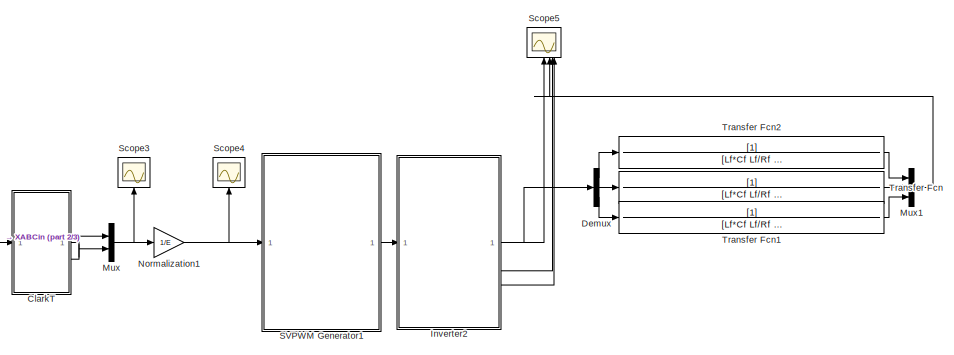
[diagram: root canvas - part 1/3, top right region]
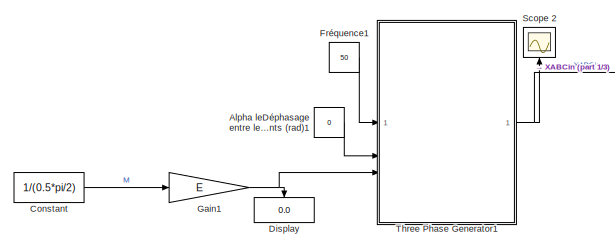
[diagram: root canvas - part 2/3, top left region]
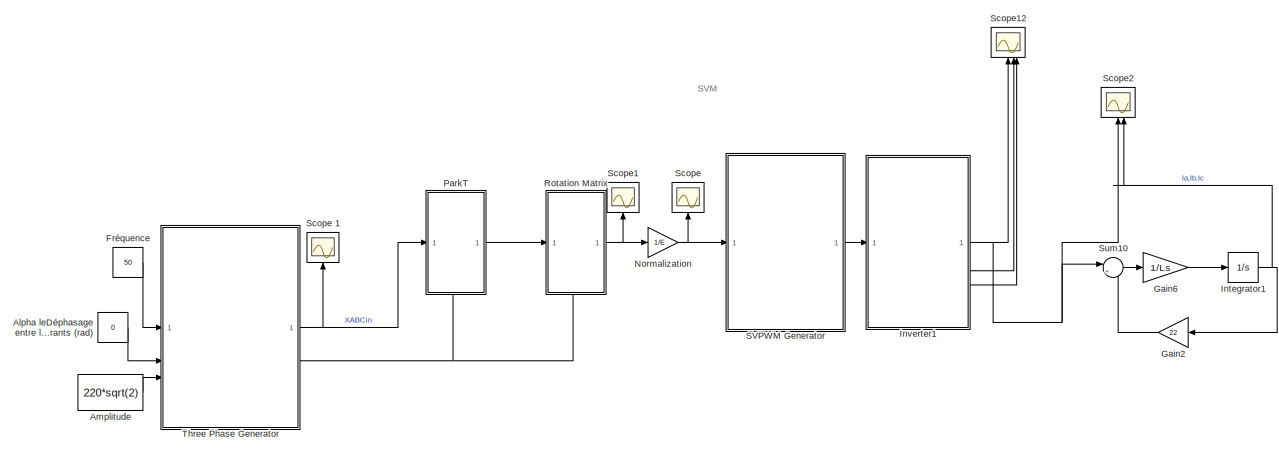
[diagram: root canvas - part 3/3, full width, bottom band]
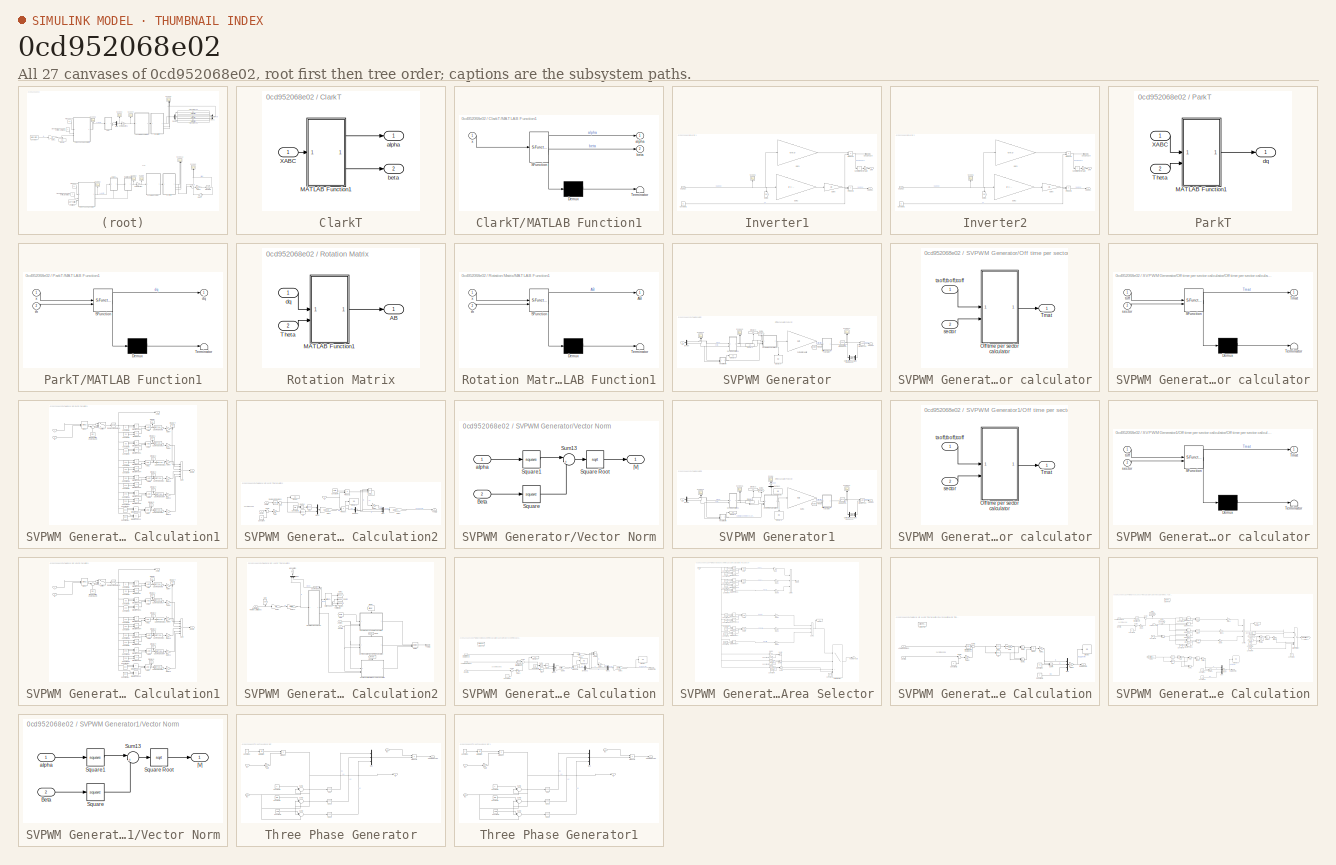
[diagram: thumbnail index - all 27 canvases of the model, root first then tree order]
MODEL slx_0cd952068e02
KIND model
CONFIG AbsTol = auto
CONFIG EnableMultiTasking = off
CONFIG FixedStep = 1e-6
CONFIG MaxStep = auto
CONFIG MinStep = auto
CONFIG RelTol = 1e-3
CONFIG SampleTimeConstraint = Unconstrained
CONFIG SolverName = ode4
CONFIG StartTime = 0.0
CONFIG StopTime = 0.06
BLOCK [Constant] Alpha leDéphasage entre les courants (rad)
  Commented = on
  Value = 0
BLOCK [Constant] Alpha leDéphasage entre les courants (rad)1
  Value = 0
BLOCK [Constant] Amplitude
  Commented = on
  Value = 220*sqrt(2)
BLOCK [SubSystem] ClarkT
BLOCK [SubSystem] ClarkT/MATLAB Function1
  ErrorFcn = Stateflow.Translate.translate
  PermitHierarchicalResolution = ExplicitOnly
  SFBlockType = MATLAB Function
  TreatAsAtomicUnit = on
BLOCK [Demux] ClarkT/MATLAB Function1/ Demux 
  Outputs = 1
BLOCK [S-Function] ClarkT/MATLAB Function1/ SFunction 
  EnableBusSupport = on
  FunctionName = sf_sfun
  PortCounts = [1 3]
  SFcnIsStateOwnerBlock = off
  SFunctionDeploymentMode = off
  Tag = Stateflow S-Function 3
BLOCK [Terminator] ClarkT/MATLAB Function1/ Terminator 
BLOCK [Outport] ClarkT/MATLAB Function1/alpha
BLOCK [Outport] ClarkT/MATLAB Function1/beta
  Port = 2
BLOCK [Inport] ClarkT/MATLAB Function1/x
BLOCK [Inport] ClarkT/XABC
BLOCK [Outport] ClarkT/alpha
BLOCK [Outport] ClarkT/beta
  Port = 2
BLOCK [Constant] Constant
  Value = 1/(0.5*pi/2)
BLOCK [Demux] Demux
  Outputs = 3
BLOCK [Display] Display
  Decimation = 1
  NameLocation = left
BLOCK [Constant] Fréquence
  Commented = on
  Value = 50
BLOCK [Constant] Fréquence1
  Value = 50
BLOCK [Gain] Gain1
  Gain = E
BLOCK [Gain] Gain2
  Commented = on
  Gain = 22
  NameLocation = top
BLOCK [Gain] Gain6
  Commented = on
  Gain = 1/Ls
BLOCK [Integrator] Integrator1
  Commented = on
BLOCK [SubSystem] Inverter1
  Commented = on
BLOCK [Inport] Inverter1/Ca,Cb,Cc
BLOCK [Constant] Inverter1/Constant1
  Value = E
BLOCK [Gain] Inverter1/Gain
  Gain = 1/3
BLOCK [Gain] Inverter1/Gain1
  Gain = eye(3)
  Multiplication = Matrix(K*u)
BLOCK [Gain] Inverter1/Gain2
  Gain = [2 -1 -1; -1 2 -1; -1 -1 2]
  Multiplication = Matrix(K*u)
BLOCK [Gain] Inverter1/Gain6
  Gain = 1/3
BLOCK [Goto] Inverter1/Goto8
  GotoTag = Cmd
  NameLocation = left
BLOCK [Product] Inverter1/Product1
BLOCK [Product] Inverter1/Product3
BLOCK [Scope] Inverter1/Scope6
  Floating = off
  NameLocation = right
  NumInputPorts = 1
  ScopeSpecificationString = Simulink.scopes.TimeScopeBlockCfg('CurrentConfiguration', extmgr.ConfigurationSet(extmgr.Configuration('Core','General UI',true),extmgr.Configuration('Core','Source UI',true),extmgr.Configuration('Sources','WiredSimulink',true,'DataLoggingVariableName','ScopeData1'),extmgr.Configuration('Visuals','Time Domain',true,'SerializedDisplays',{struct('MinYLimReal','-0.02445','MaxYLimReal','1.00221','YLab...<+1466ch>
BLOCK [Sum] Inverter1/Sum of Elements
  IconShape = rectangular
  Inputs = +
BLOCK [Outport] Inverter1/UN0
  Port = 3
BLOCK [Outport] Inverter1/Ua0,Ub0,Uc0
  Port = 2
BLOCK [Outport] Inverter1/Va,Vb,Vc
BLOCK [SubSystem] Inverter2
BLOCK [Inport] Inverter2/Ca,Cb,Cc
BLOCK [Constant] Inverter2/Constant1
  Value = E
BLOCK [Gain] Inverter2/Gain
  Gain = 1/3
BLOCK [Gain] Inverter2/Gain1
  Gain = eye(3)
  Multiplication = Matrix(K*u)
BLOCK [Gain] Inverter2/Gain2
  Gain = [2 -1 -1; -1 2 -1; -1 -1 2]
  Multiplication = Matrix(K*u)
BLOCK [Gain] Inverter2/Gain6
  Gain = 1/3
BLOCK [Goto] Inverter2/Goto8
  GotoTag = Cmd
  NameLocation = left
BLOCK [Product] Inverter2/Product1
BLOCK [Product] Inverter2/Product3
BLOCK [Scope] Inverter2/Scope6
  Floating = off
  NameLocation = right
  NumInputPorts = 1
  ScopeSpecificationString = Simulink.scopes.TimeScopeBlockCfg('CurrentConfiguration', extmgr.ConfigurationSet(extmgr.Configuration('Core','General UI',true),extmgr.Configuration('Core','Source UI',true),extmgr.Configuration('Sources','WiredSimulink',true,'DataLoggingVariableName','ScopeData1'),extmgr.Configuration('Visuals','Time Domain',true,'SerializedDisplays',{struct('MinYLimReal','-0.02445','MaxYLimReal','1.00221','YLab...<+1466ch>
BLOCK [Sum] Inverter2/Sum of Elements
  IconShape = rectangular
  Inputs = +
BLOCK [Outport] Inverter2/UN0
  Port = 3
BLOCK [Outport] Inverter2/Ua0,Ub0,Uc0
  Port = 2
BLOCK [Outport] Inverter2/Va,Vb,Vc
BLOCK [Mux] Mux
  DisplayOption = bar
  Inputs = 2
BLOCK [Mux] Mux1
  DisplayOption = bar
  Inputs = 3
BLOCK [Gain] Normalization
  Commented = on
  Gain = 1/E
BLOCK [Gain] Normalization1
  Gain = 1/E
BLOCK [SubSystem] ParkT
  Commented = on
  PortSchema = {"entries":[{"content":{"sides":[{"content":{"connectorIds":["In1"]},"type":"ConnectorPlacement.EquallySpacedRectSide","uuid":"228dfcfc-5d6b-4d2b-a954-ee5f3fee8856"},{"content":{"connectorIds":["Out1"],"side":"RIGHT"},"type":"ConnectorPlacement.EquallySpacedRectSide","uuid":"1b1b4c30-bceb-4aa5-9a3a-183aa9b64903"},{"content":{"connectorIds":[],"side":"TOP"},"type":"ConnectorPlacement.EquallySpacedR...<+389ch>
BLOCK [SubSystem] ParkT/MATLAB Function1
  ErrorFcn = Stateflow.Translate.translate
  PermitHierarchicalResolution = ExplicitOnly
  SFBlockType = MATLAB Function
  TreatAsAtomicUnit = on
BLOCK [Demux] ParkT/MATLAB Function1/ Demux 
  Outputs = 1
BLOCK [S-Function] ParkT/MATLAB Function1/ SFunction 
  EnableBusSupport = on
  FunctionName = sf_sfun
  PortCounts = [2 2]
  SFcnIsStateOwnerBlock = off
  SFunctionDeploymentMode = off
  Tag = Stateflow S-Function 5
BLOCK [Terminator] ParkT/MATLAB Function1/ Terminator 
BLOCK [Outport] ParkT/MATLAB Function1/dq
BLOCK [Inport] ParkT/MATLAB Function1/th
  Port = 2
BLOCK [Inport] ParkT/MATLAB Function1/x
BLOCK [Inport] ParkT/Theta
  Port = 2
BLOCK [Inport] ParkT/XABC
BLOCK [Outport] ParkT/dq
BLOCK [SubSystem] Rotation Matrix
  Commented = on
  PortSchema = {"entries":[{"content":{"sides":[{"content":{"connectorIds":["In1"]},"type":"ConnectorPlacement.EquallySpacedRectSide","uuid":"228dfcfc-5d6b-4d2b-a954-ee5f3fee8856"},{"content":{"connectorIds":["Out1"],"side":"RIGHT"},"type":"ConnectorPlacement.EquallySpacedRectSide","uuid":"1b1b4c30-bceb-4aa5-9a3a-183aa9b64903"},{"content":{"connectorIds":[],"side":"TOP"},"type":"ConnectorPlacement.EquallySpacedR...<+389ch>
BLOCK [Outport] Rotation Matrix/AB
BLOCK [SubSystem] Rotation Matrix/MATLAB Function1
  ErrorFcn = Stateflow.Translate.translate
  PermitHierarchicalResolution = ExplicitOnly
  SFBlockType = MATLAB Function
  TreatAsAtomicUnit = on
BLOCK [Demux] Rotation Matrix/MATLAB Function1/ Demux 
  Outputs = 1
BLOCK [S-Function] Rotation Matrix/MATLAB Function1/ SFunction 
  EnableBusSupport = on
  FunctionName = sf_sfun
  PortCounts = [2 2]
  SFcnIsStateOwnerBlock = off
  SFunctionDeploymentMode = off
  Tag = Stateflow S-Function 1
BLOCK [Terminator] Rotation Matrix/MATLAB Function1/ Terminator 
BLOCK [Outport] Rotation Matrix/MATLAB Function1/AB
BLOCK [Inport] Rotation Matrix/MATLAB Function1/th
  Port = 2
BLOCK [Inport] Rotation Matrix/MATLAB Function1/x
BLOCK [Inport] Rotation Matrix/Theta
  Port = 2
BLOCK [Inport] Rotation Matrix/dq
BLOCK [SubSystem] SVPWM Generator
  Commented = on
BLOCK [Inport] SVPWM Generator/AB
BLOCK [Outport] SVPWM Generator/Ca,Cb,Cc
BLOCK [Demux] SVPWM Generator/Correcting Phase Sequence
  Outputs = 3
BLOCK [Demux] SVPWM Generator/Demux
  Outputs = 2
BLOCK [Display] SVPWM Generator/Display3
  Decimation = 1
  NameLocation = right
BLOCK [Display] SVPWM Generator/Display4
  Decimation = 1
  NameLocation = right
BLOCK [Display] SVPWM Generator/Display5
  Decimation = 1
BLOCK [Display] SVPWM Generator/Display6
  Decimation = 1
  NameLocation = left
BLOCK [From] SVPWM Generator/From16
  GotoTag = Sector
BLOCK [Goto] SVPWM Generator/Goto8
  GotoTag = Sector
  NameLocation = right
BLOCK [RelationalOperator] SVPWM Generator/GreaterThan
  InputSameDT = off
  OutDataTypeStr = boolean
  RndMeth = Simplest
BLOCK [Mux] SVPWM Generator/Mux
  DisplayOption = bar
  Inputs = 3
BLOCK [SubSystem] SVPWM Generator/Off time per sector calculator
BLOCK [SubSystem] SVPWM Generator/Off time per sector calculator/Off time per sector calculator
  ErrorFcn = Stateflow.Translate.translate
  PermitHierarchicalResolution = ExplicitOnly
  SFBlockType = MATLAB Function
  TreatAsAtomicUnit = on
BLOCK [Demux] SVPWM Generator/Off time per sector calculator/Off time per sector calculator/ Demux 
  Outputs = 1
BLOCK [S-Function] SVPWM Generator/Off time per sector calculator/Off time per sector calculator/ SFunction 
  EnableBusSupport = on
  FunctionName = sf_sfun
  PortCounts = [2 2]
  SFcnIsStateOwnerBlock = off
  SFunctionDeploymentMode = off
  Tag = Stateflow S-Function 9
BLOCK [Terminator] SVPWM Generator/Off time per sector calculator/Off time per sector calculator/ Terminator 
BLOCK [Outport] SVPWM Generator/Off time per sector calculator/Off time per sector calculator/Tmat
BLOCK [Inport] SVPWM Generator/Off time per sector calculator/Off time per sector calculator/sector
  Port = 2
BLOCK [Inport] SVPWM Generator/Off time per sector calculator/Off time per sector calculator/toff
BLOCK [Outport] SVPWM Generator/Off time per sector calculator/Tmat
BLOCK [Inport] SVPWM Generator/Off time per sector calculator/sector
  Port = 2
BLOCK [Inport] SVPWM Generator/Off time per sector calculator/taoff,tboff,tcoff
BLOCK [Gain] SVPWM Generator/Permutation Matrix
  Gain = Poff
  Multiplication = Matrix(K*u)
BLOCK [Reference] SVPWM Generator/Repeating Sequence  REF=simulink/Sources/Repeating
Sequence
  SourceBlock = simulink/Sources/Repeating\nSequence
  SourceType = Repeating table
BLOCK [Scope] SVPWM Generator/Scope10
  Floating = off
  NameLocation = right
  NumInputPorts = 2
  ScopeSpecificationString = Simulink.scopes.TimeScopeBlockCfg('CurrentConfiguration', extmgr.ConfigurationSet(extmgr.Configuration('Core','General UI',true),extmgr.Configuration('Core','Source UI',true),extmgr.Configuration('Sources','WiredSimulink',true,'DataLoggingVariableName','ScopeData5'),extmgr.Configuration('Visuals','Time Domain',true,'SerializedDisplays',{struct('MinYLimReal','-66.16292','MaxYLimReal','185.094','YLa...<+1739ch>
BLOCK [Scope] SVPWM Generator/Scope13
  Floating = off
  NameLocation = right
  NumInputPorts = 2
  ScopeSpecificationString = Simulink.scopes.TimeScopeBlockCfg('CurrentConfiguration', extmgr.ConfigurationSet(extmgr.Configuration('Core','General UI',true),extmgr.Configuration('Core','Source UI',true),extmgr.Configuration('Sources','WiredSimulink',true,'DataLoggingVariableName','ScopeData8'),extmgr.Configuration('Visuals','Time Domain',true,'SerializedDisplays',{struct('MinYLimReal','-0.125','MaxYLimReal','1.125','YLabelRe...<+2057ch>
BLOCK [Scope] SVPWM Generator/Scope15
  Floating = off
  NameLocation = right
  NumInputPorts = 2
  ScopeSpecificationString = Simulink.scopes.TimeScopeBlockCfg('CurrentConfiguration', extmgr.ConfigurationSet(extmgr.Configuration('Core','General UI',true),extmgr.Configuration('Core','Source UI',true),extmgr.Configuration('Sources','WiredSimulink',true,'DataLoggingVariableName','ScopeData2'),extmgr.Configuration('Visuals','Time Domain',true,'SerializedDisplays',{struct('MinYLimReal','0.375','MaxYLimReal','6.625','YLabelRea...<+2469ch>
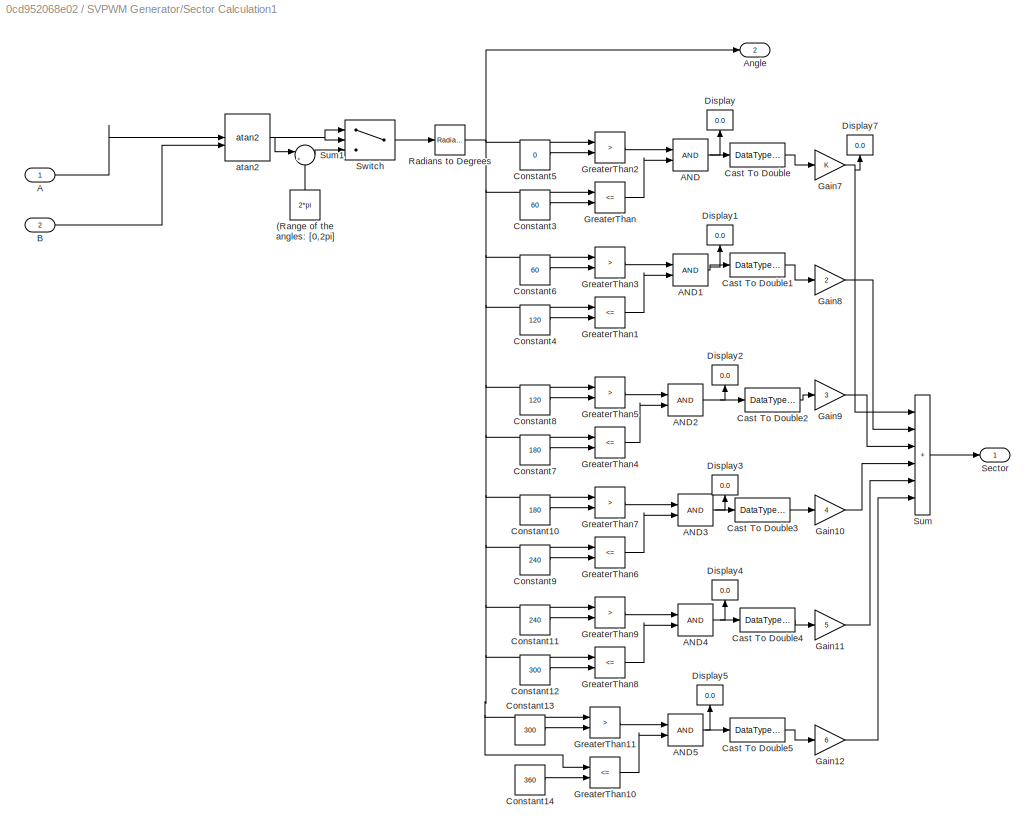
BLOCK [SubSystem] SVPWM Generator/Sector Calculation1
BLOCK [Constant] SVPWM Generator/Sector Calculation1/(Range of the angles: [0,2pi]
  NameLocation = right
  Value = 2*pi
BLOCK [Inport] SVPWM Generator/Sector Calculation1/A
BLOCK [Logic] SVPWM Generator/Sector Calculation1/AND
  AllPortsSameDT = off
  IconShape = distinctive
  OutDataTypeStr = boolean
BLOCK [Logic] SVPWM Generator/Sector Calculation1/AND1
  AllPortsSameDT = off
  IconShape = distinctive
  OutDataTypeStr = boolean
BLOCK [Logic] SVPWM Generator/Sector Calculation1/AND2
  AllPortsSameDT = off
  IconShape = distinctive
  OutDataTypeStr = boolean
BLOCK [Logic] SVPWM Generator/Sector Calculation1/AND3
  AllPortsSameDT = off
  IconShape = distinctive
  OutDataTypeStr = boolean
BLOCK [Logic] SVPWM Generator/Sector Calculation1/AND4
  AllPortsSameDT = off
  IconShape = distinctive
  OutDataTypeStr = boolean
BLOCK [Logic] SVPWM Generator/Sector Calculation1/AND5
  AllPortsSameDT = off
  IconShape = distinctive
  OutDataTypeStr = boolean
BLOCK [Outport] SVPWM Generator/Sector Calculation1/Angle
  Port = 2
BLOCK [Inport] SVPWM Generator/Sector Calculation1/B
  Port = 2
BLOCK [DataTypeConversion] SVPWM Generator/Sector Calculation1/Cast To Double
  OutDataTypeStr = double
  RndMeth = Floor
  SaturateOnIntegerOverflow = off
BLOCK [DataTypeConversion] SVPWM Generator/Sector Calculation1/Cast To Double1
  OutDataTypeStr = double
  RndMeth = Floor
  SaturateOnIntegerOverflow = off
BLOCK [DataTypeConversion] SVPWM Generator/Sector Calculation1/Cast To Double2
  OutDataTypeStr = double
  RndMeth = Floor
  SaturateOnIntegerOverflow = off
BLOCK [DataTypeConversion] SVPWM Generator/Sector Calculation1/Cast To Double3
  OutDataTypeStr = double
  RndMeth = Floor
  SaturateOnIntegerOverflow = off
BLOCK [DataTypeConversion] SVPWM Generator/Sector Calculation1/Cast To Double4
  OutDataTypeStr = double
  RndMeth = Floor
  SaturateOnIntegerOverflow = off
BLOCK [DataTypeConversion] SVPWM Generator/Sector Calculation1/Cast To Double5
  OutDataTypeStr = double
  RndMeth = Floor
  SaturateOnIntegerOverflow = off
BLOCK [Constant] SVPWM Generator/Sector Calculation1/Constant10
  Value = 180
BLOCK [Constant] SVPWM Generator/Sector Calculation1/Constant11
  Value = 240
BLOCK [Constant] SVPWM Generator/Sector Calculation1/Constant12
  Value = 300
BLOCK [Constant] SVPWM Generator/Sector Calculation1/Constant13
  Value = 300
BLOCK [Constant] SVPWM Generator/Sector Calculation1/Constant14
  Value = 360
BLOCK [Constant] SVPWM Generator/Sector Calculation1/Constant3
  Value = 60
BLOCK [Constant] SVPWM Generator/Sector Calculation1/Constant4
  Value = 120
BLOCK [Constant] SVPWM Generator/Sector Calculation1/Constant5
  Value = 0
BLOCK [Constant] SVPWM Generator/Sector Calculation1/Constant6
  Value = 60
BLOCK [Constant] SVPWM Generator/Sector Calculation1/Constant7
  Value = 180
BLOCK [Constant] SVPWM Generator/Sector Calculation1/Constant8
  Value = 120
BLOCK [Constant] SVPWM Generator/Sector Calculation1/Constant9
  Value = 240
BLOCK [Display] SVPWM Generator/Sector Calculation1/Display
  Decimation = 1
  NameLocation = right
BLOCK [Display] SVPWM Generator/Sector Calculation1/Display1
  Decimation = 1
  NameLocation = right
BLOCK [Display] SVPWM Generator/Sector Calculation1/Display2
  Decimation = 1
  NameLocation = right
BLOCK [Display] SVPWM Generator/Sector Calculation1/Display3
  Decimation = 1
  NameLocation = right
BLOCK [Display] SVPWM Generator/Sector Calculation1/Display4
  Decimation = 1
  NameLocation = right
BLOCK [Display] SVPWM Generator/Sector Calculation1/Display5
  Decimation = 1
  NameLocation = right
BLOCK [Display] SVPWM Generator/Sector Calculation1/Display7
  Decimation = 1
  NameLocation = right
BLOCK [Gain] SVPWM Generator/Sector Calculation1/Gain10
  Gain = 4
BLOCK [Gain] SVPWM Generator/Sector Calculation1/Gain11
  Gain = 5
BLOCK [Gain] SVPWM Generator/Sector Calculation1/Gain12
  Gain = 6
BLOCK [Gain] SVPWM Generator/Sector Calculation1/Gain7
BLOCK [Gain] SVPWM Generator/Sector Calculation1/Gain8
  Gain = 2
BLOCK [Gain] SVPWM Generator/Sector Calculation1/Gain9
  Gain = 3
BLOCK [RelationalOperator] SVPWM Generator/Sector Calculation1/GreaterThan
  InputSameDT = off
  Operator = <=
  OutDataTypeStr = boolean
  RndMeth = Simplest
BLOCK [RelationalOperator] SVPWM Generator/Sector Calculation1/GreaterThan1
  InputSameDT = off
  Operator = <=
  OutDataTypeStr = boolean
  RndMeth = Simplest
BLOCK [RelationalOperator] SVPWM Generator/Sector Calculation1/GreaterThan10
  InputSameDT = off
  Operator = <=
  OutDataTypeStr = boolean
  RndMeth = Simplest
BLOCK [RelationalOperator] SVPWM Generator/Sector Calculation1/GreaterThan11
  InputSameDT = off
  Operator = >
  OutDataTypeStr = boolean
  RndMeth = Simplest
BLOCK [RelationalOperator] SVPWM Generator/Sector Calculation1/GreaterThan2
  InputSameDT = off
  Operator = >
  OutDataTypeStr = boolean
  RndMeth = Simplest
BLOCK [RelationalOperator] SVPWM Generator/Sector Calculation1/GreaterThan3
  InputSameDT = off
  Operator = >
  OutDataTypeStr = boolean
  RndMeth = Simplest
BLOCK [RelationalOperator] SVPWM Generator/Sector Calculation1/GreaterThan4
  InputSameDT = off
  Operator = <=
  OutDataTypeStr = boolean
  RndMeth = Simplest
BLOCK [RelationalOperator] SVPWM Generator/Sector Calculation1/GreaterThan5
  InputSameDT = off
  Operator = >
  OutDataTypeStr = boolean
  RndMeth = Simplest
BLOCK [RelationalOperator] SVPWM Generator/Sector Calculation1/GreaterThan6
  InputSameDT = off
  Operator = <=
  OutDataTypeStr = boolean
  RndMeth = Simplest
BLOCK [RelationalOperator] SVPWM Generator/Sector Calculation1/GreaterThan7
  InputSameDT = off
  Operator = >
  OutDataTypeStr = boolean
  RndMeth = Simplest
BLOCK [RelationalOperator] SVPWM Generator/Sector Calculation1/GreaterThan8
  InputSameDT = off
  Operator = <=
  OutDataTypeStr = boolean
  RndMeth = Simplest
BLOCK [RelationalOperator] SVPWM Generator/Sector Calculation1/GreaterThan9
  InputSameDT = off
  Operator = >
  OutDataTypeStr = boolean
  RndMeth = Simplest
BLOCK [Reference] SVPWM Generator/Sector Calculation1/Radians to Degrees  REF=simulink_extras/Transformations/Radians
to Degrees
  SourceBlock = simulink_extras/Transformations/Radians\nto Degrees
  SourceType = RadiansToDegrees
BLOCK [Outport] SVPWM Generator/Sector Calculation1/Sector
BLOCK [Sum] SVPWM Generator/Sector Calculation1/Sum
  IconShape = rectangular
  Inputs = ++++++
BLOCK [Sum] SVPWM Generator/Sector Calculation1/Sum1
  Inputs = |++
BLOCK [Switch] SVPWM Generator/Sector Calculation1/Switch
  Criteria = u2 > Threshold
  InputSameDT = off
  SaturateOnIntegerOverflow = off
BLOCK [Reference] SVPWM Generator/Sector Calculation1/atan2  REF=mcbcontrolslib/atan2
  LibrarySourceBlock = mcblib/Controls/Math Transforms/atan2
  SourceBlock = mcbcontrolslib/atan2
  SourceType = atan2
BLOCK [SubSystem] SVPWM Generator/Vactor Time Calculation2
BLOCK [Inport] SVPWM Generator/Vactor Time Calculation2/Angle°
  Port = 2
BLOCK [Constant] SVPWM Generator/Vactor Time Calculation2/Constant
BLOCK [Constant] SVPWM Generator/Vactor Time Calculation2/Constant3
  Value = pi/3
BLOCK [Constant] SVPWM Generator/Vactor Time Calculation2/Constant4
  Value = sqrt(3)
BLOCK [Reference] SVPWM Generator/Vactor Time Calculation2/Degrees to Radians  REF=simulink_extras/Transformations/Degrees to
Radians
  SourceBlock = simulink_extras/Transformations/Degrees to\nRadians
  SourceType = DegreesToRadians
BLOCK [Demux] SVPWM Generator/Vactor Time Calculation2/Demux1
  Outputs = 2
BLOCK [Display] SVPWM Generator/Vactor Time Calculation2/Display
  Decimation = 1
BLOCK [Display] SVPWM Generator/Vactor Time Calculation2/Display1
  Decimation = 1
BLOCK [Gain] SVPWM Generator/Vactor Time Calculation2/Gain
  Gain = pi/3
BLOCK [Gain] SVPWM Generator/Vactor Time Calculation2/Gain1
  Gain = 1/sqrt(3)
BLOCK [Gain] SVPWM Generator/Vactor Time Calculation2/Gain6
  Gain = 1/2
BLOCK [Gain] SVPWM Generator/Vactor Time Calculation2/Gain7
  Gain = sqrt(3)
BLOCK [Inport] SVPWM Generator/Vactor Time Calculation2/M
  Port = 3
BLOCK [Mux] SVPWM Generator/Vactor Time Calculation2/Mux
  DisplayOption = bar
  Inputs = 3
BLOCK [Mux] SVPWM Generator/Vactor Time Calculation2/Mux6
  DisplayOption = bar
  Inputs = 2
BLOCK [Product] SVPWM Generator/Vactor Time Calculation2/Product
BLOCK [Product] SVPWM Generator/Vactor Time Calculation2/Product1
BLOCK [Inport] SVPWM Generator/Vactor Time Calculation2/Sector
BLOCK [Trigonometry] SVPWM Generator/Vactor Time Calculation2/Sin
BLOCK [Trigonometry] SVPWM Generator/Vactor Time Calculation2/Sin1
BLOCK [Sum] SVPWM Generator/Vactor Time Calculation2/Sum
  Inputs = |+-
BLOCK [Sum] SVPWM Generator/Vactor Time Calculation2/Sum1
  Inputs = |+-
BLOCK [Sum] SVPWM Generator/Vactor Time Calculation2/Sum10
  IconShape = rectangular
  Inputs = -+
BLOCK [Sum] SVPWM Generator/Vactor Time Calculation2/Sum11
  IconShape = rectangular
  Inputs = --+
BLOCK [Outport] SVPWM Generator/Vactor Time Calculation2/T0//2,t1,t2
BLOCK [SubSystem] SVPWM Generator/Vector Norm
BLOCK [Inport] SVPWM Generator/Vector Norm/Beta
  Port = 2
BLOCK [Math] SVPWM Generator/Vector Norm/Square
  Operator = square
BLOCK [Sqrt] SVPWM Generator/Vector Norm/Square Root
BLOCK [Math] SVPWM Generator/Vector Norm/Square1
  Operator = square
BLOCK [Sum] SVPWM Generator/Vector Norm/Sum13
  Inputs = |++
BLOCK [Inport] SVPWM Generator/Vector Norm/alpha
BLOCK [Outport] SVPWM Generator/Vector Norm/|V|
BLOCK [SubSystem] SVPWM Generator1
BLOCK [Inport] SVPWM Generator1/AB
BLOCK [Outport] SVPWM Generator1/Ca,Cb,Cc
BLOCK [Demux] SVPWM Generator1/Correcting Phase Sequence
  Outputs = 3
BLOCK [Demux] SVPWM Generator1/Demux
  Outputs = 2
BLOCK [Demux] SVPWM Generator1/Demux1
  NameLocation = right
  Outputs = 2
BLOCK [Display] SVPWM Generator1/Display
  Decimation = 1
BLOCK [Display] SVPWM Generator1/Display3
  Decimation = 1
  NameLocation = right
BLOCK [Display] SVPWM Generator1/Display4
  Decimation = 1
  NameLocation = right
BLOCK [Display] SVPWM Generator1/Display5
  Decimation = 1
BLOCK [Display] SVPWM Generator1/Display6
  Decimation = 1
  NameLocation = left
BLOCK [From] SVPWM Generator1/From16
  GotoTag = Sector
BLOCK [Gain] SVPWM Generator1/Gain6
  Gain = Poff
  Multiplication = Matrix(K*u)
BLOCK [Goto] SVPWM Generator1/Goto8
  GotoTag = Sector
  NameLocation = right
BLOCK [RelationalOperator] SVPWM Generator1/GreaterThan
  InputSameDT = off
  OutDataTypeStr = boolean
  RndMeth = Simplest
BLOCK [Mux] SVPWM Generator1/Mux
  DisplayOption = bar
  Inputs = 3
BLOCK [SubSystem] SVPWM Generator1/Off time per sector calculator
BLOCK [SubSystem] SVPWM Generator1/Off time per sector calculator/Off time per sector calculator
  ErrorFcn = Stateflow.Translate.translate
  PermitHierarchicalResolution = ExplicitOnly
  SFBlockType = MATLAB Function
  TreatAsAtomicUnit = on
BLOCK [Demux] SVPWM Generator1/Off time per sector calculator/Off time per sector calculator/ Demux 
  Outputs = 1
BLOCK [S-Function] SVPWM Generator1/Off time per sector calculator/Off time per sector calculator/ SFunction 
  EnableBusSupport = on
  FunctionName = sf_sfun
  PortCounts = [2 2]
  SFcnIsStateOwnerBlock = off
  SFunctionDeploymentMode = off
  Tag = Stateflow S-Function 2
BLOCK [Terminator] SVPWM Generator1/Off time per sector calculator/Off time per sector calculator/ Terminator 
BLOCK [Outport] SVPWM Generator1/Off time per sector calculator/Off time per sector calculator/Tmat
BLOCK [Inport] SVPWM Generator1/Off time per sector calculator/Off time per sector calculator/sector
  Port = 2
BLOCK [Inport] SVPWM Generator1/Off time per sector calculator/Off time per sector calculator/toff
BLOCK [Outport] SVPWM Generator1/Off time per sector calculator/Tmat
BLOCK [Inport] SVPWM Generator1/Off time per sector calculator/sector
  Port = 2
BLOCK [Inport] SVPWM Generator1/Off time per sector calculator/taoff,tboff,tcoff
BLOCK [Reference] SVPWM Generator1/Repeating Sequence  REF=simulink/Sources/Repeating
Sequence
  SourceBlock = simulink/Sources/Repeating\nSequence
  SourceType = Repeating table
BLOCK [Scope] SVPWM Generator1/Scope
  Floating = off
  NameLocation = right
  NumInputPorts = 2
  ScopeSpecificationString = Simulink.scopes.TimeScopeBlockCfg('CurrentConfiguration', extmgr.ConfigurationSet(extmgr.Configuration('Core','General UI',true),extmgr.Configuration('Core','Source UI',true),extmgr.Configuration('Sources','WiredSimulink',true,'DataLoggingVariableName','ScopeData5'),extmgr.Configuration('Visuals','Time Domain',true,'SerializedDisplays',{struct('MinYLimReal','0.99996894163756','MaxYLimReal','0.9999...<+2264ch>
BLOCK [Scope] SVPWM Generator1/Scope10
  Floating = off
  NameLocation = right
  NumInputPorts = 2
  ScopeSpecificationString = Simulink.scopes.TimeScopeBlockCfg('CurrentConfiguration', extmgr.ConfigurationSet(extmgr.Configuration('Core','General UI',true),extmgr.Configuration('Core','Source UI',true),extmgr.Configuration('Sources','WiredSimulink',true,'DataLoggingVariableName','ScopeData5'),extmgr.Configuration('Visuals','Time Domain',true,'SerializedDisplays',{struct('MinYLimReal','-2.48532','MaxYLimReal','3.54478','YLab...<+1762ch>
BLOCK [Scope] SVPWM Generator1/Scope13
  Floating = off
  NameLocation = right
  NumInputPorts = 2
  ScopeSpecificationString = Simulink.scopes.TimeScopeBlockCfg('CurrentConfiguration', extmgr.ConfigurationSet(extmgr.Configuration('Core','General UI',true),extmgr.Configuration('Core','Source UI',true),extmgr.Configuration('Sources','WiredSimulink',true,'DataLoggingVariableName','ScopeData8'),extmgr.Configuration('Visuals','Time Domain',true,'SerializedDisplays',{struct('MinYLimReal','-0.125','MaxYLimReal','1.125','YLabelRe...<+2199ch>
BLOCK [Scope] SVPWM Generator1/Scope15
  Floating = off
  NameLocation = right
  NumInputPorts = 2
  ScopeSpecificationString = Simulink.scopes.TimeScopeBlockCfg('CurrentConfiguration', extmgr.ConfigurationSet(extmgr.Configuration('Core','General UI',true),extmgr.Configuration('Core','Source UI',true),extmgr.Configuration('Sources','WiredSimulink',true,'DataLoggingVariableName','ScopeData2'),extmgr.Configuration('Visuals','Time Domain',true,'SerializedDisplays',{struct('MinYLimReal','0.70823','MaxYLimReal','6.625','YLabelR...<+2440ch>
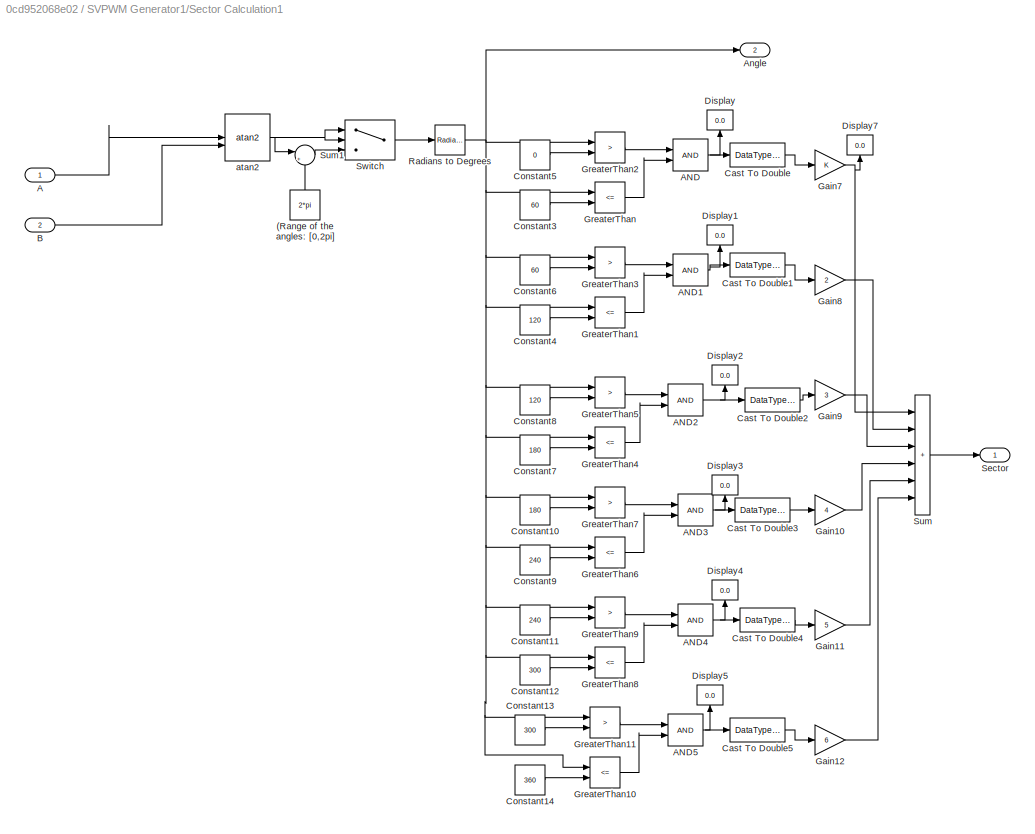
BLOCK [SubSystem] SVPWM Generator1/Sector Calculation1
BLOCK [Constant] SVPWM Generator1/Sector Calculation1/(Range of the angles: [0,2pi]
  NameLocation = right
  Value = 2*pi
BLOCK [Inport] SVPWM Generator1/Sector Calculation1/A
BLOCK [Logic] SVPWM Generator1/Sector Calculation1/AND
  AllPortsSameDT = off
  IconShape = distinctive
  OutDataTypeStr = boolean
BLOCK [Logic] SVPWM Generator1/Sector Calculation1/AND1
  AllPortsSameDT = off
  IconShape = distinctive
  OutDataTypeStr = boolean
BLOCK [Logic] SVPWM Generator1/Sector Calculation1/AND2
  AllPortsSameDT = off
  IconShape = distinctive
  OutDataTypeStr = boolean
BLOCK [Logic] SVPWM Generator1/Sector Calculation1/AND3
  AllPortsSameDT = off
  IconShape = distinctive
  OutDataTypeStr = boolean
BLOCK [Logic] SVPWM Generator1/Sector Calculation1/AND4
  AllPortsSameDT = off
  IconShape = distinctive
  OutDataTypeStr = boolean
BLOCK [Logic] SVPWM Generator1/Sector Calculation1/AND5
  AllPortsSameDT = off
  IconShape = distinctive
  OutDataTypeStr = boolean
BLOCK [Outport] SVPWM Generator1/Sector Calculation1/Angle
  Port = 2
BLOCK [Inport] SVPWM Generator1/Sector Calculation1/B
  Port = 2
BLOCK [DataTypeConversion] SVPWM Generator1/Sector Calculation1/Cast To Double
  OutDataTypeStr = double
  RndMeth = Floor
  SaturateOnIntegerOverflow = off
BLOCK [DataTypeConversion] SVPWM Generator1/Sector Calculation1/Cast To Double1
  OutDataTypeStr = double
  RndMeth = Floor
  SaturateOnIntegerOverflow = off
BLOCK [DataTypeConversion] SVPWM Generator1/Sector Calculation1/Cast To Double2
  OutDataTypeStr = double
  RndMeth = Floor
  SaturateOnIntegerOverflow = off
BLOCK [DataTypeConversion] SVPWM Generator1/Sector Calculation1/Cast To Double3
  OutDataTypeStr = double
  RndMeth = Floor
  SaturateOnIntegerOverflow = off
BLOCK [DataTypeConversion] SVPWM Generator1/Sector Calculation1/Cast To Double4
  OutDataTypeStr = double
  RndMeth = Floor
  SaturateOnIntegerOverflow = off
BLOCK [DataTypeConversion] SVPWM Generator1/Sector Calculation1/Cast To Double5
  OutDataTypeStr = double
  RndMeth = Floor
  SaturateOnIntegerOverflow = off
BLOCK [Constant] SVPWM Generator1/Sector Calculation1/Constant10
  Value = 180
BLOCK [Constant] SVPWM Generator1/Sector Calculation1/Constant11
  Value = 240
BLOCK [Constant] SVPWM Generator1/Sector Calculation1/Constant12
  Value = 300
BLOCK [Constant] SVPWM Generator1/Sector Calculation1/Constant13
  Value = 300
BLOCK [Constant] SVPWM Generator1/Sector Calculation1/Constant14
  Value = 360
BLOCK [Constant] SVPWM Generator1/Sector Calculation1/Constant3
  Value = 60
BLOCK [Constant] SVPWM Generator1/Sector Calculation1/Constant4
  Value = 120
BLOCK [Constant] SVPWM Generator1/Sector Calculation1/Constant5
  Value = 0
BLOCK [Constant] SVPWM Generator1/Sector Calculation1/Constant6
  Value = 60
BLOCK [Constant] SVPWM Generator1/Sector Calculation1/Constant7
  Value = 180
BLOCK [Constant] SVPWM Generator1/Sector Calculation1/Constant8
  Value = 120
BLOCK [Constant] SVPWM Generator1/Sector Calculation1/Constant9
  Value = 240
BLOCK [Display] SVPWM Generator1/Sector Calculation1/Display
  Decimation = 1
  NameLocation = right
BLOCK [Display] SVPWM Generator1/Sector Calculation1/Display1
  Decimation = 1
  NameLocation = right
BLOCK [Display] SVPWM Generator1/Sector Calculation1/Display2
  Decimation = 1
  NameLocation = right
BLOCK [Display] SVPWM Generator1/Sector Calculation1/Display3
  Decimation = 1
  NameLocation = right
BLOCK [Display] SVPWM Generator1/Sector Calculation1/Display4
  Decimation = 1
  NameLocation = right
BLOCK [Display] SVPWM Generator1/Sector Calculation1/Display5
  Decimation = 1
  NameLocation = right
BLOCK [Display] SVPWM Generator1/Sector Calculation1/Display7
  Decimation = 1
  NameLocation = right
BLOCK [Gain] SVPWM Generator1/Sector Calculation1/Gain10
  Gain = 4
BLOCK [Gain] SVPWM Generator1/Sector Calculation1/Gain11
  Gain = 5
BLOCK [Gain] SVPWM Generator1/Sector Calculation1/Gain12
  Gain = 6
BLOCK [Gain] SVPWM Generator1/Sector Calculation1/Gain7
BLOCK [Gain] SVPWM Generator1/Sector Calculation1/Gain8
  Gain = 2
BLOCK [Gain] SVPWM Generator1/Sector Calculation1/Gain9
  Gain = 3
BLOCK [RelationalOperator] SVPWM Generator1/Sector Calculation1/GreaterThan
  InputSameDT = off
  Operator = <=
  OutDataTypeStr = boolean
  RndMeth = Simplest
BLOCK [RelationalOperator] SVPWM Generator1/Sector Calculation1/GreaterThan1
  InputSameDT = off
  Operator = <=
  OutDataTypeStr = boolean
  RndMeth = Simplest
BLOCK [RelationalOperator] SVPWM Generator1/Sector Calculation1/GreaterThan10
  InputSameDT = off
  Operator = <=
  OutDataTypeStr = boolean
  RndMeth = Simplest
BLOCK [RelationalOperator] SVPWM Generator1/Sector Calculation1/GreaterThan11
  InputSameDT = off
  Operator = >
  OutDataTypeStr = boolean
  RndMeth = Simplest
BLOCK [RelationalOperator] SVPWM Generator1/Sector Calculation1/GreaterThan2
  InputSameDT = off
  Operator = >
  OutDataTypeStr = boolean
  RndMeth = Simplest
BLOCK [RelationalOperator] SVPWM Generator1/Sector Calculation1/GreaterThan3
  InputSameDT = off
  Operator = >
  OutDataTypeStr = boolean
  RndMeth = Simplest
BLOCK [RelationalOperator] SVPWM Generator1/Sector Calculation1/GreaterThan4
  InputSameDT = off
  Operator = <=
  OutDataTypeStr = boolean
  RndMeth = Simplest
BLOCK [RelationalOperator] SVPWM Generator1/Sector Calculation1/GreaterThan5
  InputSameDT = off
  Operator = >
  OutDataTypeStr = boolean
  RndMeth = Simplest
BLOCK [RelationalOperator] SVPWM Generator1/Sector Calculation1/GreaterThan6
  InputSameDT = off
  Operator = <=
  OutDataTypeStr = boolean
  RndMeth = Simplest
BLOCK [RelationalOperator] SVPWM Generator1/Sector Calculation1/GreaterThan7
  InputSameDT = off
  Operator = >
  OutDataTypeStr = boolean
  RndMeth = Simplest
BLOCK [RelationalOperator] SVPWM Generator1/Sector Calculation1/GreaterThan8
  InputSameDT = off
  Operator = <=
  OutDataTypeStr = boolean
  RndMeth = Simplest
BLOCK [RelationalOperator] SVPWM Generator1/Sector Calculation1/GreaterThan9
  InputSameDT = off
  Operator = >
  OutDataTypeStr = boolean
  RndMeth = Simplest
BLOCK [Reference] SVPWM Generator1/Sector Calculation1/Radians to Degrees  REF=simulink_extras/Transformations/Radians
to Degrees
  SourceBlock = simulink_extras/Transformations/Radians\nto Degrees
  SourceType = RadiansToDegrees
BLOCK [Outport] SVPWM Generator1/Sector Calculation1/Sector
BLOCK [Sum] SVPWM Generator1/Sector Calculation1/Sum
  IconShape = rectangular
  Inputs = ++++++
BLOCK [Sum] SVPWM Generator1/Sector Calculation1/Sum1
  Inputs = |++
BLOCK [Switch] SVPWM Generator1/Sector Calculation1/Switch
  Criteria = u2 > Threshold
  InputSameDT = off
  SaturateOnIntegerOverflow = off
BLOCK [Reference] SVPWM Generator1/Sector Calculation1/atan2  REF=mcbcontrolslib/atan2
  LibrarySourceBlock = mcblib/Controls/Math Transforms/atan2
  SourceBlock = mcbcontrolslib/atan2
  SourceType = atan2
BLOCK [SubSystem] SVPWM Generator1/Vactor Time Calculation2
  PortSchema = {"entries":[{"content":{"sides":[{"content":{"connectorIds":["In1","In2","In3"]},"type":"ConnectorPlacement.EquallySpacedRectSide","uuid":"b36ff3f1-d1b6-4cc1-9bbd-425fd19c1a38"},{"content":{"connectorIds":["Out1"],"side":"RIGHT"},"type":"ConnectorPlacement.EquallySpacedRectSide","uuid":"a221f04d-f18a-44c3-93a1-83af2c15186c"},{"content":{"connectorIds":["Out2"],"side":"TOP"},"type":"ConnectorPlacem...<+258ch>
BLOCK [Inport] SVPWM Generator1/Vactor Time Calculation2/Angle°1
  Port = 2
BLOCK [DataTypeConversion] SVPWM Generator1/Vactor Time Calculation2/Cast To Double
  NameLocation = top
  OutDataTypeStr = double
  RndMeth = Floor
  SaturateOnIntegerOverflow = off
BLOCK [From] SVPWM Generator1/Vactor Time Calculation2/From
  GotoTag = Norm
  TagVisibility = global
BLOCK [From] SVPWM Generator1/Vactor Time Calculation2/From1
  GotoTag = linear
  NameLocation = left
BLOCK [From] SVPWM Generator1/Vactor Time Calculation2/From2
  GotoTag = ModeI
  NameLocation = left
BLOCK [From] SVPWM Generator1/Vactor Time Calculation2/From3
  GotoTag = ModeII
  NameLocation = left
BLOCK [Gain] SVPWM Generator1/Vactor Time Calculation2/Gain1
  Gain = 1/2
BLOCK [Gain] SVPWM Generator1/Vactor Time Calculation2/Gain10
  Gain = 1/(2/pi)
BLOCK [Goto] SVPWM Generator1/Vactor Time Calculation2/Goto
  GotoTag = Norm
  NameLocation = right
  TagVisibility = global
BLOCK [Goto] SVPWM Generator1/Vactor Time Calculation2/Goto1
  GotoTag = linear
BLOCK [Goto] SVPWM Generator1/Vactor Time Calculation2/Goto2
  GotoTag = ModeI
BLOCK [Goto] SVPWM Generator1/Vactor Time Calculation2/Goto3
  GotoTag = ModeII
BLOCK [SubSystem] SVPWM Generator1/Vactor Time Calculation2/Linear Region Vector Time Calculation
  TreatAsAtomicUnit = on
BLOCK [ActionPort] SVPWM Generator1/Vactor Time Calculation2/Linear Region Vector Time Calculation/Action Port
  ActionPortLabel = case [ 0 ]:
  InitializeStates = reset
BLOCK [Inport] SVPWM Generator1/Vactor Time Calculation2/Linear Region Vector Time Calculation/Angle in Degrees 
  Port = 2
BLOCK [Constant] SVPWM Generator1/Vactor Time Calculation2/Linear Region Vector Time Calculation/Constant2
BLOCK [Constant] SVPWM Generator1/Vactor Time Calculation2/Linear Region Vector Time Calculation/Constant6
  Value = pi/3
BLOCK [Reference] SVPWM Generator1/Vactor Time Calculation2/Linear Region Vector Time Calculation/Degrees to Radians1  REF=simulink_extras/Transformations/Degrees to
Radians
  SourceBlock = simulink_extras/Transformations/Degrees to\nRadians
  SourceType = DegreesToRadians
BLOCK [Demux] SVPWM Generator1/Vactor Time Calculation2/Linear Region Vector Time Calculation/Demux2
  Outputs = 2
BLOCK [Display] SVPWM Generator1/Vactor Time Calculation2/Linear Region Vector Time Calculation/Display
  Decimation = 1
BLOCK [Display] SVPWM Generator1/Vactor Time Calculation2/Linear Region Vector Time Calculation/Display2
  Decimation = 1
BLOCK [Display] SVPWM Generator1/Vactor Time Calculation2/Linear Region Vector Time Calculation/Display3
  Decimation = 1
BLOCK [Gain] SVPWM Generator1/Vactor Time Calculation2/Linear Region Vector Time Calculation/Gain2
  Gain = pi/3
BLOCK [Gain] SVPWM Generator1/Vactor Time Calculation2/Linear Region Vector Time Calculation/Gain3
  Gain = 1/sqrt(3)
BLOCK [Gain] SVPWM Generator1/Vactor Time Calculation2/Linear Region Vector Time Calculation/Gain4
  Gain = 1/2
BLOCK [Gain] SVPWM Generator1/Vactor Time Calculation2/Linear Region Vector Time Calculation/Gain5
  Gain = sqrt(3)
BLOCK [Gain] SVPWM Generator1/Vactor Time Calculation2/Linear Region Vector Time Calculation/Gain9
  Gain = sqrt(3)
BLOCK [Mux] SVPWM Generator1/Vactor Time Calculation2/Linear Region Vector Time Calculation/Mux1
  DisplayOption = bar
  Inputs = 3
BLOCK [Mux] SVPWM Generator1/Vactor Time Calculation2/Linear Region Vector Time Calculation/Mux2
  DisplayOption = bar
  Inputs = 2
BLOCK [Inport] SVPWM Generator1/Vactor Time Calculation2/Linear Region Vector Time Calculation/Normalized Reference 
BLOCK [Product] SVPWM Generator1/Vactor Time Calculation2/Linear Region Vector Time Calculation/Product2
BLOCK [Inport] SVPWM Generator1/Vactor Time Calculation2/Linear Region Vector Time Calculation/Sector1
  Port = 3
BLOCK [Trigonometry] SVPWM Generator1/Vactor Time Calculation2/Linear Region Vector Time Calculation/Sin2
BLOCK [Trigonometry] SVPWM Generator1/Vactor Time Calculation2/Linear Region Vector Time Calculation/Sin3
BLOCK [Sum] SVPWM Generator1/Vactor Time Calculation2/Linear Region Vector Time Calculation/Sum2
  Inputs = |+-
BLOCK [Sum] SVPWM Generator1/Vactor Time Calculation2/Linear Region Vector Time Calculation/Sum3
  Inputs = |+-
BLOCK [Sum] SVPWM Generator1/Vactor Time Calculation2/Linear Region Vector Time Calculation/Sum4
  IconShape = rectangular
  Inputs = -+
BLOCK [Sum] SVPWM Generator1/Vactor Time Calculation2/Linear Region Vector Time Calculation/Sum5
  IconShape = rectangular
  Inputs = --+
BLOCK [Outport] SVPWM Generator1/Vactor Time Calculation2/Linear Region Vector Time Calculation/t0//2,t1,t2 (norm)
BLOCK [Merge] SVPWM Generator1/Vactor Time Calculation2/Merge
  Inputs = 3
BLOCK [Outport] SVPWM Generator1/Vactor Time Calculation2/Modulation
  NameLocation = right
  Port = 2
BLOCK [Mux] SVPWM Generator1/Vactor Time Calculation2/Mux
  DisplayOption = bar
  Inputs = 2
  NameLocation = right
BLOCK [Inport] SVPWM Generator1/Vactor Time Calculation2/Normalized Reference Amplitudes
  Port = 3
BLOCK [SubSystem] SVPWM Generator1/Vactor Time Calculation2/Operating Area Selector
BLOCK [Logic] SVPWM Generator1/Vactor Time Calculation2/Operating Area Selector/AND
  AllPortsSameDT = off
  IconShape = distinctive
  OutDataTypeStr = boolean
BLOCK [Logic] SVPWM Generator1/Vactor Time Calculation2/Operating Area Selector/AND1
  AllPortsSameDT = off
  IconShape = distinctive
  OutDataTypeStr = boolean
BLOCK [Logic] SVPWM Generator1/Vactor Time Calculation2/Operating Area Selector/AND2
  AllPortsSameDT = off
  IconShape = distinctive
  OutDataTypeStr = boolean
BLOCK [Logic] SVPWM Generator1/Vactor Time Calculation2/Operating Area Selector/AND3
  AllPortsSameDT = off
  IconShape = distinctive
  OutDataTypeStr = boolean
BLOCK [Constant] SVPWM Generator1/Vactor Time Calculation2/Operating Area Selector/Constant
  Value = nan
BLOCK [Constant] SVPWM Generator1/Vactor Time Calculation2/Operating Area Selector/Constant1
  Value = 0.9975
BLOCK [Constant] SVPWM Generator1/Vactor Time Calculation2/Operating Area Selector/Constant2
  Value = 0.98
BLOCK [Constant] SVPWM Generator1/Vactor Time Calculation2/Operating Area Selector/Constant23
  Value = 0.98
BLOCK [Constant] SVPWM Generator1/Vactor Time Calculation2/Operating Area Selector/Constant24
  Value = 0.952
BLOCK [Constant] SVPWM Generator1/Vactor Time Calculation2/Operating Area Selector/Constant26
  Value = 0.907
BLOCK [Constant] SVPWM Generator1/Vactor Time Calculation2/Operating Area Selector/Constant27
  Value = 0.952
BLOCK [Constant] SVPWM Generator1/Vactor Time Calculation2/Operating Area Selector/Constant28
  Value = 0
BLOCK [Constant] SVPWM Generator1/Vactor Time Calculation2/Operating Area Selector/Constant29
  Value = 0.907
BLOCK [Constant] SVPWM Generator1/Vactor Time Calculation2/Operating Area Selector/Constant4
  Value = 0.9975
BLOCK [Constant] SVPWM Generator1/Vactor Time Calculation2/Operating Area Selector/Constant5
  Value = 6.09
BLOCK [Constant] SVPWM Generator1/Vactor Time Calculation2/Operating Area Selector/Constant6
  Value = 11.34
BLOCK [Constant] SVPWM Generator1/Vactor Time Calculation2/Operating Area Selector/Constant7
  Value = 48.43
BLOCK [Constant] SVPWM Generator1/Vactor Time Calculation2/Operating Area Selector/Constant9
  Value = 0.952
BLOCK [Display] SVPWM Generator1/Vactor Time Calculation2/Operating Area Selector/Display
  Decimation = 1
BLOCK [Gain] SVPWM Generator1/Vactor Time Calculation2/Operating Area Selector/Gain
  Gain = 0
BLOCK [Gain] SVPWM Generator1/Vactor Time Calculation2/Operating Area Selector/Gain1
BLOCK [Gain] SVPWM Generator1/Vactor Time Calculation2/Operating Area Selector/Gain2
  Gain = 0
BLOCK [Gain] SVPWM Generator1/Vactor Time Calculation2/Operating Area Selector/Gain3
BLOCK [Gain] SVPWM Generator1/Vactor Time Calculation2/Operating Area Selector/Gain4
  Gain = 2
BLOCK [Gain] SVPWM Generator1/Vactor Time Calculation2/Operating Area Selector/Gain5
  Gain = 6.4
BLOCK [Gain] SVPWM Generator1/Vactor Time Calculation2/Operating Area Selector/Gain6
  Gain = 11.75
BLOCK [Gain] SVPWM Generator1/Vactor Time Calculation2/Operating Area Selector/Gain7
  Gain = 48.96
BLOCK [Gain] SVPWM Generator1/Vactor Time Calculation2/Operating Area Selector/Gain8
  Gain = 2
BLOCK [RelationalOperator] SVPWM Generator1/Vactor Time Calculation2/Operating Area Selector/GreaterThan1
  InputSameDT = off
  Operator = <=
  OutDataTypeStr = boolean
  RndMeth = Simplest
BLOCK [RelationalOperator] SVPWM Generator1/Vactor Time Calculation2/Operating Area Selector/GreaterThan12
  InputSameDT = off
  Operator = <=
  OutDataTypeStr = boolean
  RndMeth = Simplest
BLOCK [RelationalOperator] SVPWM Generator1/Vactor Time Calculation2/Operating Area Selector/GreaterThan13
  InputSameDT = off
  Operator = <=
  OutDataTypeStr = boolean
  RndMeth = Simplest
BLOCK [RelationalOperator] SVPWM Generator1/Vactor Time Calculation2/Operating Area Selector/GreaterThan16
  InputSameDT = off
  OutDataTypeStr = boolean
  RndMeth = Simplest
BLOCK [RelationalOperator] SVPWM Generator1/Vactor Time Calculation2/Operating Area Selector/GreaterThan17
  InputSameDT = off
  Operator = >
  OutDataTypeStr = boolean
  RndMeth = Simplest
BLOCK [RelationalOperator] SVPWM Generator1/Vactor Time Calculation2/Operating Area Selector/GreaterThan18
  InputSameDT = off
  Operator = <=
  OutDataTypeStr = boolean
  RndMeth = Simplest
BLOCK [RelationalOperator] SVPWM Generator1/Vactor Time Calculation2/Operating Area Selector/GreaterThan19
  InputSameDT = off
  Operator = >
  OutDataTypeStr = boolean
  RndMeth = Simplest
BLOCK [RelationalOperator] SVPWM Generator1/Vactor Time Calculation2/Operating Area Selector/GreaterThan2
  InputSameDT = off
  Operator = >
  OutDataTypeStr = boolean
  RndMeth = Simplest
BLOCK [RelationalOperator] SVPWM Generator1/Vactor Time Calculation2/Operating Area Selector/GreaterThan4
  InputSameDT = off
  Operator = >
  OutDataTypeStr = boolean
  RndMeth = Simplest
BLOCK [RelationalOperator] SVPWM Generator1/Vactor Time Calculation2/Operating Area Selector/GreaterThan6
  InputSameDT = off
  Operator = >
  OutDataTypeStr = boolean
  RndMeth = Simplest
BLOCK [Outport] SVPWM Generator1/Vactor Time Calculation2/Operating Area Selector/Holding Angle
  Port = 2
BLOCK [Inport] SVPWM Generator1/Vactor Time Calculation2/Operating Area Selector/M
BLOCK [Outport] SVPWM Generator1/Vactor Time Calculation2/Operating Area Selector/Mode
BLOCK [MultiPortSwitch] SVPWM Generator1/Vactor Time Calculation2/Operating Area Selector/Multiport Switch
  DataPortForDefault = Additional data port
  DataPortOrder = Zero-based contiguous
  InputSameDT = off
  SaturateOnIntegerOverflow = off
  zeroidx = on
BLOCK [Sum] SVPWM Generator1/Vactor Time Calculation2/Operating Area Selector/Sum1
  IconShape = rectangular
  Inputs = +++
BLOCK [Sum] SVPWM Generator1/Vactor Time Calculation2/Operating Area Selector/Sum2
  IconShape = rectangular
  Inputs = +-
BLOCK [Sum] SVPWM Generator1/Vactor Time Calculation2/Operating Area Selector/Sum3
  IconShape = rectangular
  Inputs = +-
BLOCK [Sum] SVPWM Generator1/Vactor Time Calculation2/Operating Area Selector/Sum4
  IconShape = rectangular
  Inputs = +-
BLOCK [Sum] SVPWM Generator1/Vactor Time Calculation2/Operating Area Selector/Sum6
  IconShape = rectangular
  Inputs = +++
BLOCK [SubSystem] SVPWM Generator1/Vactor Time Calculation2/Overmodulation I :  Vector Time Calculation
  TreatAsAtomicUnit = on
BLOCK [ActionPort] SVPWM Generator1/Vactor Time Calculation2/Overmodulation I :  Vector Time Calculation/Action Port
  ActionPortLabel = case [ 1 ]:
  InitializeStates = reset
BLOCK [Inport] SVPWM Generator1/Vactor Time Calculation2/Overmodulation I :  Vector Time Calculation/Angle in Degrees 
BLOCK [Constant] SVPWM Generator1/Vactor Time Calculation2/Overmodulation I :  Vector Time Calculation/Constant
  Value = Ts
BLOCK [Constant] SVPWM Generator1/Vactor Time Calculation2/Overmodulation I :  Vector Time Calculation/Constant1
  Value = 0
BLOCK [Constant] SVPWM Generator1/Vactor Time Calculation2/Overmodulation I :  Vector Time Calculation/Constant2
BLOCK [Trigonometry] SVPWM Generator1/Vactor Time Calculation2/Overmodulation I :  Vector Time Calculation/Cos
  Operator = cos
BLOCK [Reference] SVPWM Generator1/Vactor Time Calculation2/Overmodulation I :  Vector Time Calculation/Degrees to Radians1  REF=simulink_extras/Transformations/Degrees to
Radians
  SourceBlock = simulink_extras/Transformations/Degrees to\nRadians
  SourceType = DegreesToRadians
BLOCK [Display] SVPWM Generator1/Vactor Time Calculation2/Overmodulation I :  Vector Time Calculation/Display
  Decimation = 1
BLOCK [Product] SVPWM Generator1/Vactor Time Calculation2/Overmodulation I :  Vector Time Calculation/Divide
  Inputs = */
BLOCK [Gain] SVPWM Generator1/Vactor Time Calculation2/Overmodulation I :  Vector Time Calculation/Gain
  Gain = sqrt(3)
BLOCK [Gain] SVPWM Generator1/Vactor Time Calculation2/Overmodulation I :  Vector Time Calculation/Gain1
  Gain = Ts
BLOCK [Gain] SVPWM Generator1/Vactor Time Calculation2/Overmodulation I :  Vector Time Calculation/Gain2
  Gain = pi/3
BLOCK [Gain] SVPWM Generator1/Vactor Time Calculation2/Overmodulation I :  Vector Time Calculation/Gain3
  Gain = 1/Ts
BLOCK [Mux] SVPWM Generator1/Vactor Time Calculation2/Overmodulation I :  Vector Time Calculation/Mux
  DisplayOption = bar
  Inputs = 3
BLOCK [Inport] SVPWM Generator1/Vactor Time Calculation2/Overmodulation I :  Vector Time Calculation/Sector1
  Port = 2
BLOCK [Trigonometry] SVPWM Generator1/Vactor Time Calculation2/Overmodulation I :  Vector Time Calculation/Sin
BLOCK [Sum] SVPWM Generator1/Vactor Time Calculation2/Overmodulation I :  Vector Time Calculation/Sum
  IconShape = rectangular
  Inputs = +-
BLOCK [Sum] SVPWM Generator1/Vactor Time Calculation2/Overmodulation I :  Vector Time Calculation/Sum1
  IconShape = rectangular
BLOCK [Sum] SVPWM Generator1/Vactor Time Calculation2/Overmodulation I :  Vector Time Calculation/Sum2
  Inputs = |+-
BLOCK [Sum] SVPWM Generator1/Vactor Time Calculation2/Overmodulation I :  Vector Time Calculation/Sum3
  Inputs = |+-
BLOCK [Sum] SVPWM Generator1/Vactor Time Calculation2/Overmodulation I :  Vector Time Calculation/Sum4
  IconShape = rectangular
  Inputs = -+
BLOCK [Outport] SVPWM Generator1/Vactor Time Calculation2/Overmodulation I :  Vector Time Calculation/t0//2,t1,t2 (norm)
BLOCK [SubSystem] SVPWM Generator1/Vactor Time Calculation2/Overmodulation II : Time & Angle Calculation
  TreatAsAtomicUnit = on
BLOCK [Logic] SVPWM Generator1/Vactor Time Calculation2/Overmodulation II : Time & Angle Calculation/AND
  AllPortsSameDT = off
  IconShape = distinctive
  OutDataTypeStr = boolean
BLOCK [Logic] SVPWM Generator1/Vactor Time Calculation2/Overmodulation II : Time & Angle Calculation/AND1
  AllPortsSameDT = off
  IconShape = distinctive
  OutDataTypeStr = boolean
BLOCK [Logic] SVPWM Generator1/Vactor Time Calculation2/Overmodulation II : Time & Angle Calculation/AND5
  AllPortsSameDT = off
  IconShape = distinctive
  OutDataTypeStr = boolean
BLOCK [ActionPort] SVPWM Generator1/Vactor Time Calculation2/Overmodulation II : Time & Angle Calculation/Action Port
  ActionPortLabel = case [ 2 ]:
  InitializeStates = reset
BLOCK [Inport] SVPWM Generator1/Vactor Time Calculation2/Overmodulation II : Time & Angle Calculation/Angle in Degrees 
BLOCK [Constant] SVPWM Generator1/Vactor Time Calculation2/Overmodulation II : Time & Angle Calculation/Constant
  Value = Ts
BLOCK [Constant] SVPWM Generator1/Vactor Time Calculation2/Overmodulation II : Time & Angle Calculation/Constant1
  Value = 0
BLOCK [Constant] SVPWM Generator1/Vactor Time Calculation2/Overmodulation II : Time & Angle Calculation/Constant2
BLOCK [Constant] SVPWM Generator1/Vactor Time Calculation2/Overmodulation II : Time & Angle Calculation/Constant28
  Value = 0
BLOCK [Constant] SVPWM Generator1/Vactor Time Calculation2/Overmodulation II : Time & Angle Calculation/Constant3
  Value = pi/3
BLOCK [Constant] SVPWM Generator1/Vactor Time Calculation2/Overmodulation II : Time & Angle Calculation/Constant4
  NameLocation = right
  Value = nan
BLOCK [Constant] SVPWM Generator1/Vactor Time Calculation2/Overmodulation II : Time & Angle Calculation/Constant5
  Value = 0
BLOCK [Constant] SVPWM Generator1/Vactor Time Calculation2/Overmodulation II : Time & Angle Calculation/Constant6
  Value = pi/6
BLOCK [Constant] SVPWM Generator1/Vactor Time Calculation2/Overmodulation II : Time & Angle Calculation/Constant7
  Value = pi/3
BLOCK [Constant] SVPWM Generator1/Vactor Time Calculation2/Overmodulation II : Time & Angle Calculation/Constant8
  Value = pi/3
BLOCK [Trigonometry] SVPWM Generator1/Vactor Time Calculation2/Overmodulation II : Time & Angle Calculation/Cos
  Operator = cos
BLOCK [Reference] SVPWM Generator1/Vactor Time Calculation2/Overmodulation II : Time & Angle Calculation/Degrees to Radians1  REF=simulink_extras/Transformations/Degrees to
Radians
  SourceBlock = simulink_extras/Transformations/Degrees to\nRadians
  SourceType = DegreesToRadians
BLOCK [Display] SVPWM Generator1/Vactor Time Calculation2/Overmodulation II : Time & Angle Calculation/Display
  Decimation = 1
BLOCK [Display] SVPWM Generator1/Vactor Time Calculation2/Overmodulation II : Time & Angle Calculation/Display1
  Decimation = 1
BLOCK [Product] SVPWM Generator1/Vactor Time Calculation2/Overmodulation II : Time & Angle Calculation/Divide
  Inputs = */
BLOCK [Product] SVPWM Generator1/Vactor Time Calculation2/Overmodulation II : Time & Angle Calculation/Divide1
  Inputs = */
BLOCK [From] SVPWM Generator1/Vactor Time Calculation2/Overmodulation II : Time & Angle Calculation/From
  GotoTag = HAngle
BLOCK [From] SVPWM Generator1/Vactor Time Calculation2/Overmodulation II : Time & Angle Calculation/From1
  GotoTag = Anglerad
BLOCK [From] SVPWM Generator1/Vactor Time Calculation2/Overmodulation II : Time & Angle Calculation/From2
  GotoTag = ModifiedAngle
BLOCK [Gain] SVPWM Generator1/Vactor Time Calculation2/Overmodulation II : Time & Angle Calculation/Gain
  Gain = sqrt(3)
BLOCK [Gain] SVPWM Generator1/Vactor Time Calculation2/Overmodulation II : Time & Angle Calculation/Gain1
  Gain = Ts
BLOCK [Gain] SVPWM Generator1/Vactor Time Calculation2/Overmodulation II : Time & Angle Calculation/Gain2
  Gain = pi/3
BLOCK [Gain] SVPWM Generator1/Vactor Time Calculation2/Overmodulation II : Time & Angle Calculation/Gain4
  Gain = 0
BLOCK [Gain] SVPWM Generator1/Vactor Time Calculation2/Overmodulation II : Time & Angle Calculation/Gain5
BLOCK [Gain] SVPWM Generator1/Vactor Time Calculation2/Overmodulation II : Time & Angle Calculation/Gain6
  Gain = pi/6
BLOCK [Gain] SVPWM Generator1/Vactor Time Calculation2/Overmodulation II : Time & Angle Calculation/Gain7
  Gain = 1/Ts
BLOCK [Gain] SVPWM Generator1/Vactor Time Calculation2/Overmodulation II : Time & Angle Calculation/Gain8
  Gain = 2
BLOCK [Goto] SVPWM Generator1/Vactor Time Calculation2/Overmodulation II : Time & Angle Calculation/Goto
  GotoTag = Anglerad
  NameLocation = right
BLOCK [Goto] SVPWM Generator1/Vactor Time Calculation2/Overmodulation II : Time & Angle Calculation/Goto1
  GotoTag = HAngle
  NameLocation = right
BLOCK [Goto] SVPWM Generator1/Vactor Time Calculation2/Overmodulation II : Time & Angle Calculation/Goto2
  GotoTag = ModifiedAngle
BLOCK [RelationalOperator] SVPWM Generator1/Vactor Time Calculation2/Overmodulation II : Time & Angle Calculation/GreaterThan12
  InputSameDT = off
  Operator = <=
  OutDataTypeStr = boolean
  RndMeth = Simplest
BLOCK [RelationalOperator] SVPWM Generator1/Vactor Time Calculation2/Overmodulation II : Time & Angle Calculation/GreaterThan13
  InputSameDT = off
  Operator = <=
  OutDataTypeStr = boolean
  RndMeth = Simplest
BLOCK [RelationalOperator] SVPWM Generator1/Vactor Time Calculation2/Overmodulation II : Time & Angle Calculation/GreaterThan16
  InputSameDT = off
  OutDataTypeStr = boolean
  RndMeth = Simplest
BLOCK [RelationalOperator] SVPWM Generator1/Vactor Time Calculation2/Overmodulation II : Time & Angle Calculation/GreaterThan17
  InputSameDT = off
  Operator = >
  OutDataTypeStr = boolean
  RndMeth = Simplest
BLOCK [RelationalOperator] SVPWM Generator1/Vactor Time Calculation2/Overmodulation II : Time & Angle Calculation/GreaterThan5
  InputSameDT = off
  Operator = <=
  OutDataTypeStr = boolean
  RndMeth = Simplest
BLOCK [RelationalOperator] SVPWM Generator1/Vactor Time Calculation2/Overmodulation II : Time & Angle Calculation/GreaterThan6
  InputSameDT = off
  Operator = >
  OutDataTypeStr = boolean
  RndMeth = Simplest
BLOCK [Inport] SVPWM Generator1/Vactor Time Calculation2/Overmodulation II : Time & Angle Calculation/Holding Angle
  Port = 3
BLOCK [MultiPortSwitch] SVPWM Generator1/Vactor Time Calculation2/Overmodulation II : Time & Angle Calculation/Multiport Switch
  DataPortForDefault = Additional data port
  DataPortOrder = Zero-based contiguous
  InputSameDT = off
  SaturateOnIntegerOverflow = off
  zeroidx = on
BLOCK [Mux] SVPWM Generator1/Vactor Time Calculation2/Overmodulation II : Time & Angle Calculation/Mux
  DisplayOption = bar
  Inputs = 3
BLOCK [Inport] SVPWM Generator1/Vactor Time Calculation2/Overmodulation II : Time & Angle Calculation/Sector1
  Port = 2
BLOCK [Trigonometry] SVPWM Generator1/Vactor Time Calculation2/Overmodulation II : Time & Angle Calculation/Sin
BLOCK [Sum] SVPWM Generator1/Vactor Time Calculation2/Overmodulation II : Time & Angle Calculation/Sum
  IconShape = rectangular
  Inputs = +-
BLOCK [Sum] SVPWM Generator1/Vactor Time Calculation2/Overmodulation II : Time & Angle Calculation/Sum1
  IconShape = rectangular
BLOCK [Sum] SVPWM Generator1/Vactor Time Calculation2/Overmodulation II : Time & Angle Calculation/Sum10
  IconShape = rectangular
  Inputs = -+
BLOCK [Sum] SVPWM Generator1/Vactor Time Calculation2/Overmodulation II : Time & Angle Calculation/Sum2
  Inputs = |+-
BLOCK [Sum] SVPWM Generator1/Vactor Time Calculation2/Overmodulation II : Time & Angle Calculation/Sum3
  Inputs = |+-
BLOCK [Sum] SVPWM Generator1/Vactor Time Calculation2/Overmodulation II : Time & Angle Calculation/Sum5
  IconShape = rectangular
  Inputs = -+
BLOCK [Sum] SVPWM Generator1/Vactor Time Calculation2/Overmodulation II : Time & Angle Calculation/Sum6
  IconShape = rectangular
  Inputs = +++
BLOCK [Sum] SVPWM Generator1/Vactor Time Calculation2/Overmodulation II : Time & Angle Calculation/Sum7
  IconShape = rectangular
  Inputs = +-
BLOCK [Sum] SVPWM Generator1/Vactor Time Calculation2/Overmodulation II : Time & Angle Calculation/Sum8
  IconShape = rectangular
  Inputs = -+
BLOCK [Outport] SVPWM Generator1/Vactor Time Calculation2/Overmodulation II : Time & Angle Calculation/t0//2,t1,t2 (norm)
BLOCK [Inport] SVPWM Generator1/Vactor Time Calculation2/Sector1
BLOCK [SwitchCase] SVPWM Generator1/Vactor Time Calculation2/Switch Case
  CaseConditions = {0,1,2}
BLOCK [Outport] SVPWM Generator1/Vactor Time Calculation2/T0//2,t1,t1
BLOCK [Terminator] SVPWM Generator1/Vactor Time Calculation2/Terminator
BLOCK [SubSystem] SVPWM Generator1/Vector Norm
BLOCK [Inport] SVPWM Generator1/Vector Norm/Beta
  Port = 2
BLOCK [Math] SVPWM Generator1/Vector Norm/Square
  Operator = square
BLOCK [Sqrt] SVPWM Generator1/Vector Norm/Square Root
BLOCK [Math] SVPWM Generator1/Vector Norm/Square1
  Operator = square
BLOCK [Sum] SVPWM Generator1/Vector Norm/Sum13
  Inputs = |++
BLOCK [Inport] SVPWM Generator1/Vector Norm/alpha
BLOCK [Outport] SVPWM Generator1/Vector Norm/|V|
BLOCK [Scope] Scope
  Commented = on
  Floating = off
  NameLocation = right
  NumInputPorts = 1
  ScopeSpecificationString = Simulink.scopes.TimeScopeBlockCfg('CurrentConfiguration', extmgr.ConfigurationSet(extmgr.Configuration('Core','General UI',true),extmgr.Configuration('Core','Source UI',true),extmgr.Configuration('Sources','WiredSimulink',true,'DataLoggingVariableName','ScopeData1'),extmgr.Configuration('Visuals','Time Domain',true,'SerializedDisplays',{struct('MinYLimReal','-27.48703','MaxYLimReal','138.52857','Y...<+1496ch>
BLOCK [Scope] Scope 1
  Commented = on
  Floating = off
  NameLocation = right
  NumInputPorts = 1
  ScopeSpecificationString = Simulink.scopes.TimeScopeBlockCfg('CurrentConfiguration', extmgr.ConfigurationSet(extmgr.Configuration('Core','General UI',true),extmgr.Configuration('Core','Source UI',true),extmgr.Configuration('Sources','WiredSimulink',true,'DataLoggingVariableName','ScopeData1'),extmgr.Configuration('Visuals','Time Domain',true,'SerializedDisplays',{struct('MinYLimReal','-388.90873','MaxYLimReal','388.90873','...<+1760ch>
BLOCK [Scope] Scope 2
  Floating = off
  NameLocation = right
  NumInputPorts = 1
  ScopeSpecificationString = Simulink.scopes.TimeScopeBlockCfg('CurrentConfiguration', extmgr.ConfigurationSet(extmgr.Configuration('Core','General UI',true),extmgr.Configuration('Core','Source UI',true),extmgr.Configuration('Sources','WiredSimulink',true,'DataLoggingVariableName','ScopeData1'),extmgr.Configuration('Visuals','Time Domain',true,'SerializedDisplays',{struct('MinYLimReal','-954.92966','MaxYLimReal','954.92966','...<+1746ch>
BLOCK [Scope] Scope1
  Commented = on
  Floating = off
  NameLocation = right
  NumInputPorts = 1
  ScopeSpecificationString = Simulink.scopes.TimeScopeBlockCfg('CurrentConfiguration', extmgr.ConfigurationSet(extmgr.Configuration('Core','General UI',true),extmgr.Configuration('Core','Source UI',true),extmgr.Configuration('Sources','WiredSimulink',true,'DataLoggingVariableName','ScopeData3'),extmgr.Configuration('Visuals','Time Domain',true,'SerializedDisplays',{struct('MinYLimReal','-388.90873','MaxYLimReal','388.90873','...<+1466ch>
BLOCK [Scope] Scope12
  Commented = on
  Floating = off
  NameLocation = right
  NumInputPorts = 3
  ScopeSpecificationString = Simulink.scopes.TimeScopeBlockCfg('CurrentConfiguration', extmgr.ConfigurationSet(extmgr.Configuration('Core','General UI',true),extmgr.Configuration('Core','Source UI',true),extmgr.Configuration('Sources','WiredSimulink',true,'DataLoggingVariableName','ScopeData2'),extmgr.Configuration('Visuals','Time Domain',true,'SerializedDisplays',{struct('MinYLimReal','-581.05469','MaxYLimReal','581.05469','...<+3396ch>
BLOCK [Scope] Scope2
  Commented = on
  Floating = off
  NameLocation = right
  NumInputPorts = 3
  ScopeSpecificationString = Simulink.scopes.TimeScopeBlockCfg('CurrentConfiguration', extmgr.ConfigurationSet(extmgr.Configuration('Core','General UI',true),extmgr.Configuration('Core','Source UI',true),extmgr.Configuration('Sources','WiredSimulink',true,'DataLoggingVariableName','ScopeData4'),extmgr.Configuration('Visuals','Time Domain',true,'SerializedDisplays',{struct('MinYLimReal','-553.38542','MaxYLimReal','502.30369','...<+3192ch>
BLOCK [Scope] Scope3
  Floating = off
  NameLocation = right
  NumInputPorts = 1
  ScopeSpecificationString = Simulink.scopes.TimeScopeBlockCfg('CurrentConfiguration', extmgr.ConfigurationSet(extmgr.Configuration('Core','General UI',true),extmgr.Configuration('Core','Source UI',true),extmgr.Configuration('Sources','WiredSimulink',true,'DataLoggingVariableName','ScopeData2'),extmgr.Configuration('Visuals','Time Domain',true,'SerializedDisplays',{struct('MinYLimReal','-866.25','MaxYLimReal','866.25','YLabel...<+1477ch>
BLOCK [Scope] Scope4
  Floating = off
  NameLocation = right
  NumInputPorts = 1
  ScopeSpecificationString = Simulink.scopes.TimeScopeBlockCfg('CurrentConfiguration', extmgr.ConfigurationSet(extmgr.Configuration('Core','General UI',true),extmgr.Configuration('Core','Source UI',true),extmgr.Configuration('Sources','WiredSimulink',true,'DataLoggingVariableName','ScopeData3'),extmgr.Configuration('Visuals','Time Domain',true,'SerializedDisplays',{struct('MinYLimReal','-2.5','MaxYLimReal','2.5','YLabelReal',...<+1860ch>
BLOCK [Scope] Scope5
  Floating = off
  NameLocation = right
  NumInputPorts = 4
  ScopeSpecificationString = Simulink.scopes.TimeScopeBlockCfg('CurrentConfiguration', extmgr.ConfigurationSet(extmgr.Configuration('Core','General UI',true),extmgr.Configuration('Core','Source UI',true),extmgr.Configuration('Sources','WiredSimulink',true,'DataLoggingVariableName','ScopeData4'),extmgr.Configuration('Visuals','Time Domain',true,'SerializedDisplays',{struct('MinYLimReal','-498.04688','MaxYLimReal','498.04688','...<+3531ch>
BLOCK [Sum] Sum10
  Commented = on
  Inputs = |+-
BLOCK [SubSystem] Three Phase Generator
  Commented = on
BLOCK [Outport] Three Phase Generator/COSINEWAVES
BLOCK [Constant] Three Phase Generator/Constant
BLOCK [Constant] Three Phase Generator/Constant2
  Value = 0
BLOCK [Constant] Three Phase Generator/Constant3
  Value = 2*pi/3
BLOCK [Constant] Three Phase Generator/Constant4
  Value = 4*pi/3
BLOCK [Trigonometry] Three Phase Generator/Cos
  Operator = cos
BLOCK [Trigonometry] Three Phase Generator/Cos1
  Operator = cos
BLOCK [Trigonometry] Three Phase Generator/Cos2
  Operator = cos
BLOCK [Gain] Three Phase Generator/Gain
  Gain = 2*pi
BLOCK [Inport] Three Phase Generator/In1
BLOCK [Inport] Three Phase Generator/In2
  Port = 2
BLOCK [Inport] Three Phase Generator/In3
  Port = 3
BLOCK [Integrator] Three Phase Generator/Integrator
BLOCK [Mux] Three Phase Generator/Mux
  DisplayOption = bar
  Inputs = 3
BLOCK [Product] Three Phase Generator/Product
BLOCK [Product] Three Phase Generator/Product1
BLOCK [Sum] Three Phase Generator/Sum1
  Inputs = |-+|+
  NameLocation = top
BLOCK [Sum] Three Phase Generator/Sum2
  Inputs = |-+|+
  NameLocation = top
BLOCK [Sum] Three Phase Generator/Sum3
  Inputs = |-+|+
  NameLocation = top
BLOCK [Outport] Three Phase Generator/th
  Port = 2
BLOCK [SubSystem] Three Phase Generator1
BLOCK [Outport] Three Phase Generator1/COSINEWAVES
BLOCK [Constant] Three Phase Generator1/Constant
BLOCK [Constant] Three Phase Generator1/Constant2
  Value = 0
BLOCK [Constant] Three Phase Generator1/Constant3
  Value = 2*pi/3
BLOCK [Constant] Three Phase Generator1/Constant4
  Value = 4*pi/3
BLOCK [Trigonometry] Three Phase Generator1/Cos
  Operator = cos
BLOCK [Trigonometry] Three Phase Generator1/Cos1
  Operator = cos
BLOCK [Trigonometry] Three Phase Generator1/Cos2
  Operator = cos
BLOCK [Gain] Three Phase Generator1/Gain
  Gain = 2*pi
BLOCK [Inport] Three Phase Generator1/In1
BLOCK [Inport] Three Phase Generator1/In2
  Port = 2
BLOCK [Inport] Three Phase Generator1/In3
  Port = 3
BLOCK [Integrator] Three Phase Generator1/Integrator
BLOCK [Mux] Three Phase Generator1/Mux
  DisplayOption = bar
  Inputs = 3
BLOCK [Product] Three Phase Generator1/Product
BLOCK [Product] Three Phase Generator1/Product1
BLOCK [Sum] Three Phase Generator1/Sum1
  Inputs = |-+|+
  NameLocation = top
BLOCK [Sum] Three Phase Generator1/Sum2
  Inputs = |-+|+
  NameLocation = top
BLOCK [Sum] Three Phase Generator1/Sum3
  Inputs = |-+|+
  NameLocation = top
BLOCK [Outport] Three Phase Generator1/th
  Port = 2
BLOCK [TransferFcn] Transfer Fcn
  Denominator = [Lf*Cf Lf/Rf 1]
BLOCK [TransferFcn] Transfer Fcn1
  Denominator = [Lf*Cf Lf/Rf 1]
BLOCK [TransferFcn] Transfer Fcn2
  Denominator = [Lf*Cf Lf/Rf 1]
ANNOTATION (root): SVM
ANNOTATION SVPWM Generator: Off Time Calculation Per Sector
ANNOTATION SVPWM Generator/Vactor Time Calculation2: Sector mapping
ANNOTATION SVPWM Generator1: Off Time Calculation Per Sector
ANNOTATION SVPWM Generator1/Vactor Time Calculation2/Linear Region Vector Time Calculation: Sector mapping
ANNOTATION SVPWM Generator1/Vactor Time Calculation2/Overmodulation I :  Vector Time Calculation: Sector mapping
ANNOTATION SVPWM Generator1/Vactor Time Calculation2/Overmodulation II : Time & Angle Calculation: Sector mapping
LINE Alpha leDéphasage entre les courants (rad)1:1 -> Three Phase Generator1:2
LINE Alpha leDéphasage entre les courants (rad):1 -> Three Phase Generator:2
LINE Amplitude:1 -> Three Phase Generator:3
LINE ClarkT/MATLAB Function1:1 -> ClarkT/alpha:1
LINE ClarkT/MATLAB Function1:2 -> ClarkT/beta:1
LINE ClarkT/XABC:1 -> ClarkT/MATLAB Function1:1
LINE ClarkT:1 -> Mux:1
LINE ClarkT:2 -> Mux:2
LINE Constant:1 -> Gain1:1
LINE Demux:1 -> Transfer Fcn2:1
LINE Demux:2 -> Transfer Fcn:1
LINE Demux:3 -> Transfer Fcn1:1
LINE Fréquence1:1 -> Three Phase Generator1:1
LINE Fréquence:1 -> Three Phase Generator:1
NET Gain1:1 -> Display:1, Three Phase Generator1:3
LINE Gain2:1 -> Sum10:2
LINE Gain6:1 -> Integrator1:1
NET Integrator1:1 -> Gain2:1, Scope2:2
NET Inverter1/Ca,Cb,Cc:1 -> Inverter1/Gain1:1, Inverter1/Gain2:1, Inverter1/Goto8:1, Inverter1/Scope6:1
NET Inverter1/Constant1:1 -> Inverter1/Product1:2, Inverter1/Product3:2
LINE Inverter1/Gain1:1 -> Inverter1/Product1:1
LINE Inverter1/Gain2:1 -> Inverter1/Gain6:1
LINE Inverter1/Gain6:1 -> Inverter1/Product3:1
LINE Inverter1/Gain:1 -> Inverter1/UN0:1
NET Inverter1/Product1:1 -> Inverter1/Sum of Elements:1, Inverter1/Ua0,Ub0,Uc0:1
LINE Inverter1/Product3:1 -> Inverter1/Va,Vb,Vc:1
LINE Inverter1/Sum of Elements:1 -> Inverter1/Gain:1
NET Inverter1:1 -> Scope12:1, Scope2:1, Sum10:1
LINE Inverter1:2 -> Scope12:2
LINE Inverter1:3 -> Scope12:3
NET Inverter2/Ca,Cb,Cc:1 -> Inverter2/Gain1:1, Inverter2/Gain2:1, Inverter2/Goto8:1, Inverter2/Scope6:1
NET Inverter2/Constant1:1 -> Inverter2/Product1:2, Inverter2/Product3:2
LINE Inverter2/Gain1:1 -> Inverter2/Product1:1
LINE Inverter2/Gain2:1 -> Inverter2/Gain6:1
LINE Inverter2/Gain6:1 -> Inverter2/Product3:1
LINE Inverter2/Gain:1 -> Inverter2/UN0:1
NET Inverter2/Product1:1 -> Inverter2/Sum of Elements:1, Inverter2/Ua0,Ub0,Uc0:1
LINE Inverter2/Product3:1 -> Inverter2/Va,Vb,Vc:1
LINE Inverter2/Sum of Elements:1 -> Inverter2/Gain:1
NET Inverter2:1 -> Demux:1, Scope5:1
LINE Inverter2:2 -> Scope5:3
LINE Inverter2:3 -> Scope5:4
LINE Mux1:1 -> Scope5:2
NET Mux:1 -> Normalization1:1, Scope3:1
NET Normalization1:1 -> SVPWM Generator1:1, Scope4:1
NET Normalization:1 -> SVPWM Generator:1, Scope:1
LINE ParkT/MATLAB Function1:1 -> ParkT/dq:1
LINE ParkT/Theta:1 -> ParkT/MATLAB Function1:2
LINE ParkT/XABC:1 -> ParkT/MATLAB Function1:1
LINE ParkT:1 -> Rotation Matrix:1
LINE Rotation Matrix/MATLAB Function1:1 -> Rotation Matrix/AB:1
LINE Rotation Matrix/Theta:1 -> Rotation Matrix/MATLAB Function1:2
LINE Rotation Matrix/dq:1 -> Rotation Matrix/MATLAB Function1:1
NET Rotation Matrix:1 -> Normalization:1, Scope1:1
LINE SVPWM Generator/AB:1 -> SVPWM Generator/Demux:1
LINE SVPWM Generator/Correcting Phase Sequence:1 -> SVPWM Generator/Mux:3
LINE SVPWM Generator/Correcting Phase Sequence:2 -> SVPWM Generator/Mux:2
LINE SVPWM Generator/Correcting Phase Sequence:3 -> SVPWM Generator/Mux:1
NET SVPWM Generator/Demux:1 -> SVPWM Generator/Scope10:1, SVPWM Generator/Sector Calculation1:1, SVPWM Generator/Vector Norm:1
NET SVPWM Generator/Demux:2 -> SVPWM Generator/Scope10:2, SVPWM Generator/Sector Calculation1:2, SVPWM Generator/Vector Norm:2
LINE SVPWM Generator/From16:1 -> SVPWM Generator/Off time per sector calculator:2
LINE SVPWM Generator/GreaterThan:1 -> SVPWM Generator/Ca,Cb,Cc:1
LINE SVPWM Generator/Mux:1 -> SVPWM Generator/GreaterThan:2
LINE SVPWM Generator/Off time per sector calculator/Off time per sector calculator:1 -> SVPWM Generator/Off time per sector calculator/Tmat:1
LINE SVPWM Generator/Off time per sector calculator/sector:1 -> SVPWM Generator/Off time per sector calculator/Off time per sector calculator:2
LINE SVPWM Generator/Off time per sector calculator/taoff,tboff,tcoff:1 -> SVPWM Generator/Off time per sector calculator/Off time per sector calculator:1
NET SVPWM Generator/Off time per sector calculator:1 -> SVPWM Generator/Correcting Phase Sequence:1, SVPWM Generator/Scope13:2
LINE SVPWM Generator/Permutation Matrix:1 -> SVPWM Generator/Off time per sector calculator:1
NET SVPWM Generator/Repeating Sequence:1 -> SVPWM Generator/GreaterThan:1, SVPWM Generator/Scope13:1
LINE SVPWM Generator/Sector Calculation1/(Range of the angles: [0,2pi]:1 -> SVPWM Generator/Sector Calculation1/Sum1:2
LINE SVPWM Generator/Sector Calculation1/A:1 -> SVPWM Generator/Sector Calculation1/atan2:1
NET SVPWM Generator/Sector Calculation1/AND1:1 -> SVPWM Generator/Sector Calculation1/Cast To Double1:1, SVPWM Generator/Sector Calculation1/Display1:1
NET SVPWM Generator/Sector Calculation1/AND2:1 -> SVPWM Generator/Sector Calculation1/Cast To Double2:1, SVPWM Generator/Sector Calculation1/Display2:1
NET SVPWM Generator/Sector Calculation1/AND3:1 -> SVPWM Generator/Sector Calculation1/Cast To Double3:1, SVPWM Generator/Sector Calculation1/Display3:1
NET SVPWM Generator/Sector Calculation1/AND4:1 -> SVPWM Generator/Sector Calculation1/Cast To Double4:1, SVPWM Generator/Sector Calculation1/Display4:1
NET SVPWM Generator/Sector Calculation1/AND5:1 -> SVPWM Generator/Sector Calculation1/Cast To Double5:1, SVPWM Generator/Sector Calculation1/Display5:1
NET SVPWM Generator/Sector Calculation1/AND:1 -> SVPWM Generator/Sector Calculation1/Cast To Double:1, SVPWM Generator/Sector Calculation1/Display:1
LINE SVPWM Generator/Sector Calculation1/B:1 -> SVPWM Generator/Sector Calculation1/atan2:2
LINE SVPWM Generator/Sector Calculation1/Cast To Double1:1 -> SVPWM Generator/Sector Calculation1/Gain8:1
LINE SVPWM Generator/Sector Calculation1/Cast To Double2:1 -> SVPWM Generator/Sector Calculation1/Gain9:1
LINE SVPWM Generator/Sector Calculation1/Cast To Double3:1 -> SVPWM Generator/Sector Calculation1/Gain10:1
LINE SVPWM Generator/Sector Calculation1/Cast To Double4:1 -> SVPWM Generator/Sector Calculation1/Gain11:1
LINE SVPWM Generator/Sector Calculation1/Cast To Double5:1 -> SVPWM Generator/Sector Calculation1/Gain12:1
LINE SVPWM Generator/Sector Calculation1/Cast To Double:1 -> SVPWM Generator/Sector Calculation1/Gain7:1
LINE SVPWM Generator/Sector Calculation1/Constant10:1 -> SVPWM Generator/Sector Calculation1/GreaterThan7:2
LINE SVPWM Generator/Sector Calculation1/Constant11:1 -> SVPWM Generator/Sector Calculation1/GreaterThan9:2
LINE SVPWM Generator/Sector Calculation1/Constant12:1 -> SVPWM Generator/Sector Calculation1/GreaterThan8:2
LINE SVPWM Generator/Sector Calculation1/Constant13:1 -> SVPWM Generator/Sector Calculation1/GreaterThan11:2
LINE SVPWM Generator/Sector Calculation1/Constant14:1 -> SVPWM Generator/Sector Calculation1/GreaterThan10:2
LINE SVPWM Generator/Sector Calculation1/Constant3:1 -> SVPWM Generator/Sector Calculation1/GreaterThan:2
LINE SVPWM Generator/Sector Calculation1/Constant4:1 -> SVPWM Generator/Sector Calculation1/GreaterThan1:2
LINE SVPWM Generator/Sector Calculation1/Constant5:1 -> SVPWM Generator/Sector Calculation1/GreaterThan2:2
LINE SVPWM Generator/Sector Calculation1/Constant6:1 -> SVPWM Generator/Sector Calculation1/GreaterThan3:2
LINE SVPWM Generator/Sector Calculation1/Constant7:1 -> SVPWM Generator/Sector Calculation1/GreaterThan4:2
LINE SVPWM Generator/Sector Calculation1/Constant8:1 -> SVPWM Generator/Sector Calculation1/GreaterThan5:2
LINE SVPWM Generator/Sector Calculation1/Constant9:1 -> SVPWM Generator/Sector Calculation1/GreaterThan6:2
LINE SVPWM Generator/Sector Calculation1/Gain10:1 -> SVPWM Generator/Sector Calculation1/Sum:4
LINE SVPWM Generator/Sector Calculation1/Gain11:1 -> SVPWM Generator/Sector Calculation1/Sum:5
LINE SVPWM Generator/Sector Calculation1/Gain12:1 -> SVPWM Generator/Sector Calculation1/Sum:6
NET SVPWM Generator/Sector Calculation1/Gain7:1 -> SVPWM Generator/Sector Calculation1/Display7:1, SVPWM Generator/Sector Calculation1/Sum:1
LINE SVPWM Generator/Sector Calculation1/Gain8:1 -> SVPWM Generator/Sector Calculation1/Sum:2
LINE SVPWM Generator/Sector Calculation1/Gain9:1 -> SVPWM Generator/Sector Calculation1/Sum:3
LINE SVPWM Generator/Sector Calculation1/GreaterThan10:1 -> SVPWM Generator/Sector Calculation1/AND5:2
LINE SVPWM Generator/Sector Calculation1/GreaterThan11:1 -> SVPWM Generator/Sector Calculation1/AND5:1
LINE SVPWM Generator/Sector Calculation1/GreaterThan1:1 -> SVPWM Generator/Sector Calculation1/AND1:2
LINE SVPWM Generator/Sector Calculation1/GreaterThan2:1 -> SVPWM Generator/Sector Calculation1/AND:1
LINE SVPWM Generator/Sector Calculation1/GreaterThan3:1 -> SVPWM Generator/Sector Calculation1/AND1:1
LINE SVPWM Generator/Sector Calculation1/GreaterThan4:1 -> SVPWM Generator/Sector Calculation1/AND2:2
LINE SVPWM Generator/Sector Calculation1/GreaterThan5:1 -> SVPWM Generator/Sector Calculation1/AND2:1
LINE SVPWM Generator/Sector Calculation1/GreaterThan6:1 -> SVPWM Generator/Sector Calculation1/AND3:2
LINE SVPWM Generator/Sector Calculation1/GreaterThan7:1 -> SVPWM Generator/Sector Calculation1/AND3:1
LINE SVPWM Generator/Sector Calculation1/GreaterThan8:1 -> SVPWM Generator/Sector Calculation1/AND4:2
LINE SVPWM Generator/Sector Calculation1/GreaterThan9:1 -> SVPWM Generator/Sector Calculation1/AND4:1
LINE SVPWM Generator/Sector Calculation1/GreaterThan:1 -> SVPWM Generator/Sector Calculation1/AND:2
NET SVPWM Generator/Sector Calculation1/Radians to Degrees:1 -> SVPWM Generator/Sector Calculation1/Angle:1, SVPWM Generator/Sector Calculation1/GreaterThan10:1, SVPWM Generator/Sector Calculation1/GreaterThan11:1, SVPWM Generator/Sector Calculation1/GreaterThan1:1, SVPWM Generator/Sector Calculation1/GreaterThan2:1, SVPWM Generator/Sector Calculation1/GreaterThan3:1, SVPWM Generator/Sector Calculation1/GreaterThan4:1, SVPWM Generator/Sector Calculation1/GreaterThan5:1, SVPWM Generator/Sector Calculation1/GreaterThan6:1, SVPWM Generator/Sector Calculation1/GreaterThan7:1, SVPWM Generator/Sector Calculation1/GreaterThan8:1, SVPWM Generator/Sector Calculation1/GreaterThan9:1, SVPWM Generator/Sector Calculation1/GreaterThan:1
LINE SVPWM Generator/Sector Calculation1/Sum1:1 -> SVPWM Generator/Sector Calculation1/Switch:3
LINE SVPWM Generator/Sector Calculation1/Sum:1 -> SVPWM Generator/Sector Calculation1/Sector:1
LINE SVPWM Generator/Sector Calculation1/Switch:1 -> SVPWM Generator/Sector Calculation1/Radians to Degrees:1
NET SVPWM Generator/Sector Calculation1/atan2:1 -> SVPWM Generator/Sector Calculation1/Sum1:1, SVPWM Generator/Sector Calculation1/Switch:1, SVPWM Generator/Sector Calculation1/Switch:2
NET SVPWM Generator/Sector Calculation1:1 -> SVPWM Generator/Display3:1, SVPWM Generator/Goto8:1, SVPWM Generator/Scope15:1, SVPWM Generator/Vactor Time Calculation2:1
NET SVPWM Generator/Sector Calculation1:2 -> SVPWM Generator/Display4:1, SVPWM Generator/Scope15:2, SVPWM Generator/Vactor Time Calculation2:2
LINE SVPWM Generator/Vactor Time Calculation2/Angle°:1 -> SVPWM Generator/Vactor Time Calculation2/Degrees to Radians:1
LINE SVPWM Generator/Vactor Time Calculation2/Constant3:1 -> SVPWM Generator/Vactor Time Calculation2/Sum10:2
LINE SVPWM Generator/Vactor Time Calculation2/Constant4:1 -> SVPWM Generator/Vactor Time Calculation2/Product1:1
LINE SVPWM Generator/Vactor Time Calculation2/Constant:1 -> SVPWM Generator/Vactor Time Calculation2/Sum1:2
LINE SVPWM Generator/Vactor Time Calculation2/Degrees to Radians:1 -> SVPWM Generator/Vactor Time Calculation2/Sum:1
NET SVPWM Generator/Vactor Time Calculation2/Demux1:1 -> SVPWM Generator/Vactor Time Calculation2/Mux:2, SVPWM Generator/Vactor Time Calculation2/Sum11:1
NET SVPWM Generator/Vactor Time Calculation2/Demux1:2 -> SVPWM Generator/Vactor Time Calculation2/Mux:3, SVPWM Generator/Vactor Time Calculation2/Sum11:2
LINE SVPWM Generator/Vactor Time Calculation2/Gain1:1 -> SVPWM Generator/Vactor Time Calculation2/T0//2,t1,t2:1
LINE SVPWM Generator/Vactor Time Calculation2/Gain6:1 -> SVPWM Generator/Vactor Time Calculation2/Mux:1
LINE SVPWM Generator/Vactor Time Calculation2/Gain7:1 -> SVPWM Generator/Vactor Time Calculation2/Product:2
LINE SVPWM Generator/Vactor Time Calculation2/Gain:1 -> SVPWM Generator/Vactor Time Calculation2/Sum:2
NET SVPWM Generator/Vactor Time Calculation2/M:1 -> SVPWM Generator/Vactor Time Calculation2/Product1:2, SVPWM Generator/Vactor Time Calculation2/Product:1
LINE SVPWM Generator/Vactor Time Calculation2/Mux6:1 -> SVPWM Generator/Vactor Time Calculation2/Gain7:1
LINE SVPWM Generator/Vactor Time Calculation2/Mux:1 -> SVPWM Generator/Vactor Time Calculation2/Gain1:1
LINE SVPWM Generator/Vactor Time Calculation2/Product1:1 -> SVPWM Generator/Vactor Time Calculation2/Sum11:3
NET SVPWM Generator/Vactor Time Calculation2/Product:1 -> SVPWM Generator/Vactor Time Calculation2/Demux1:1, SVPWM Generator/Vactor Time Calculation2/Display1:1
LINE SVPWM Generator/Vactor Time Calculation2/Sector:1 -> SVPWM Generator/Vactor Time Calculation2/Sum1:1
LINE SVPWM Generator/Vactor Time Calculation2/Sin1:1 -> SVPWM Generator/Vactor Time Calculation2/Mux6:1
LINE SVPWM Generator/Vactor Time Calculation2/Sin:1 -> SVPWM Generator/Vactor Time Calculation2/Mux6:2
LINE SVPWM Generator/Vactor Time Calculation2/Sum10:1 -> SVPWM Generator/Vactor Time Calculation2/Sin1:1
LINE SVPWM Generator/Vactor Time Calculation2/Sum11:1 -> SVPWM Generator/Vactor Time Calculation2/Gain6:1
LINE SVPWM Generator/Vactor Time Calculation2/Sum1:1 -> SVPWM Generator/Vactor Time Calculation2/Gain:1
NET SVPWM Generator/Vactor Time Calculation2/Sum:1 -> SVPWM Generator/Vactor Time Calculation2/Display:1, SVPWM Generator/Vactor Time Calculation2/Sin:1, SVPWM Generator/Vactor Time Calculation2/Sum10:1
NET SVPWM Generator/Vactor Time Calculation2:1 -> SVPWM Generator/Display6:1, SVPWM Generator/Permutation Matrix:1
LINE SVPWM Generator/Vector Norm/Beta:1 -> SVPWM Generator/Vector Norm/Square:1
LINE SVPWM Generator/Vector Norm/Square Root:1 -> SVPWM Generator/Vector Norm/|V|:1
LINE SVPWM Generator/Vector Norm/Square1:1 -> SVPWM Generator/Vector Norm/Sum13:1
LINE SVPWM Generator/Vector Norm/Square:1 -> SVPWM Generator/Vector Norm/Sum13:2
LINE SVPWM Generator/Vector Norm/Sum13:1 -> SVPWM Generator/Vector Norm/Square Root:1
LINE SVPWM Generator/Vector Norm/alpha:1 -> SVPWM Generator/Vector Norm/Square1:1
NET SVPWM Generator/Vector Norm:1 -> SVPWM Generator/Display5:1, SVPWM Generator/Vactor Time Calculation2:3
LINE SVPWM Generator1/AB:1 -> SVPWM Generator1/Demux:1
LINE SVPWM Generator1/Correcting Phase Sequence:1 -> SVPWM Generator1/Mux:3
LINE SVPWM Generator1/Correcting Phase Sequence:2 -> SVPWM Generator1/Mux:2
LINE SVPWM Generator1/Correcting Phase Sequence:3 -> SVPWM Generator1/Mux:1
LINE SVPWM Generator1/Demux1:1 -> SVPWM Generator1/Scope:1
LINE SVPWM Generator1/Demux1:2 -> SVPWM Generator1/Scope:2
NET SVPWM Generator1/Demux:1 -> SVPWM Generator1/Scope10:1, SVPWM Generator1/Sector Calculation1:1, SVPWM Generator1/Vector Norm:1
NET SVPWM Generator1/Demux:2 -> SVPWM Generator1/Scope10:2, SVPWM Generator1/Sector Calculation1:2, SVPWM Generator1/Vector Norm:2
LINE SVPWM Generator1/From16:1 -> SVPWM Generator1/Off time per sector calculator:2
LINE SVPWM Generator1/Gain6:1 -> SVPWM Generator1/Off time per sector calculator:1
LINE SVPWM Generator1/GreaterThan:1 -> SVPWM Generator1/Ca,Cb,Cc:1
LINE SVPWM Generator1/Mux:1 -> SVPWM Generator1/GreaterThan:2
LINE SVPWM Generator1/Off time per sector calculator/Off time per sector calculator:1 -> SVPWM Generator1/Off time per sector calculator/Tmat:1
LINE SVPWM Generator1/Off time per sector calculator/sector:1 -> SVPWM Generator1/Off time per sector calculator/Off time per sector calculator:2
LINE SVPWM Generator1/Off time per sector calculator/taoff,tboff,tcoff:1 -> SVPWM Generator1/Off time per sector calculator/Off time per sector calculator:1
NET SVPWM Generator1/Off time per sector calculator:1 -> SVPWM Generator1/Correcting Phase Sequence:1, SVPWM Generator1/Scope13:2
NET SVPWM Generator1/Repeating Sequence:1 -> SVPWM Generator1/GreaterThan:1, SVPWM Generator1/Scope13:1
LINE SVPWM Generator1/Sector Calculation1/(Range of the angles: [0,2pi]:1 -> SVPWM Generator1/Sector Calculation1/Sum1:2
LINE SVPWM Generator1/Sector Calculation1/A:1 -> SVPWM Generator1/Sector Calculation1/atan2:1
NET SVPWM Generator1/Sector Calculation1/AND1:1 -> SVPWM Generator1/Sector Calculation1/Cast To Double1:1, SVPWM Generator1/Sector Calculation1/Display1:1
NET SVPWM Generator1/Sector Calculation1/AND2:1 -> SVPWM Generator1/Sector Calculation1/Cast To Double2:1, SVPWM Generator1/Sector Calculation1/Display2:1
NET SVPWM Generator1/Sector Calculation1/AND3:1 -> SVPWM Generator1/Sector Calculation1/Cast To Double3:1, SVPWM Generator1/Sector Calculation1/Display3:1
NET SVPWM Generator1/Sector Calculation1/AND4:1 -> SVPWM Generator1/Sector Calculation1/Cast To Double4:1, SVPWM Generator1/Sector Calculation1/Display4:1
NET SVPWM Generator1/Sector Calculation1/AND5:1 -> SVPWM Generator1/Sector Calculation1/Cast To Double5:1, SVPWM Generator1/Sector Calculation1/Display5:1
NET SVPWM Generator1/Sector Calculation1/AND:1 -> SVPWM Generator1/Sector Calculation1/Cast To Double:1, SVPWM Generator1/Sector Calculation1/Display:1
LINE SVPWM Generator1/Sector Calculation1/B:1 -> SVPWM Generator1/Sector Calculation1/atan2:2
LINE SVPWM Generator1/Sector Calculation1/Cast To Double1:1 -> SVPWM Generator1/Sector Calculation1/Gain8:1
LINE SVPWM Generator1/Sector Calculation1/Cast To Double2:1 -> SVPWM Generator1/Sector Calculation1/Gain9:1
LINE SVPWM Generator1/Sector Calculation1/Cast To Double3:1 -> SVPWM Generator1/Sector Calculation1/Gain10:1
LINE SVPWM Generator1/Sector Calculation1/Cast To Double4:1 -> SVPWM Generator1/Sector Calculation1/Gain11:1
LINE SVPWM Generator1/Sector Calculation1/Cast To Double5:1 -> SVPWM Generator1/Sector Calculation1/Gain12:1
LINE SVPWM Generator1/Sector Calculation1/Cast To Double:1 -> SVPWM Generator1/Sector Calculation1/Gain7:1
LINE SVPWM Generator1/Sector Calculation1/Constant10:1 -> SVPWM Generator1/Sector Calculation1/GreaterThan7:2
LINE SVPWM Generator1/Sector Calculation1/Constant11:1 -> SVPWM Generator1/Sector Calculation1/GreaterThan9:2
LINE SVPWM Generator1/Sector Calculation1/Constant12:1 -> SVPWM Generator1/Sector Calculation1/GreaterThan8:2
LINE SVPWM Generator1/Sector Calculation1/Constant13:1 -> SVPWM Generator1/Sector Calculation1/GreaterThan11:2
LINE SVPWM Generator1/Sector Calculation1/Constant14:1 -> SVPWM Generator1/Sector Calculation1/GreaterThan10:2
LINE SVPWM Generator1/Sector Calculation1/Constant3:1 -> SVPWM Generator1/Sector Calculation1/GreaterThan:2
LINE SVPWM Generator1/Sector Calculation1/Constant4:1 -> SVPWM Generator1/Sector Calculation1/GreaterThan1:2
LINE SVPWM Generator1/Sector Calculation1/Constant5:1 -> SVPWM Generator1/Sector Calculation1/GreaterThan2:2
LINE SVPWM Generator1/Sector Calculation1/Constant6:1 -> SVPWM Generator1/Sector Calculation1/GreaterThan3:2
LINE SVPWM Generator1/Sector Calculation1/Constant7:1 -> SVPWM Generator1/Sector Calculation1/GreaterThan4:2
LINE SVPWM Generator1/Sector Calculation1/Constant8:1 -> SVPWM Generator1/Sector Calculation1/GreaterThan5:2
LINE SVPWM Generator1/Sector Calculation1/Constant9:1 -> SVPWM Generator1/Sector Calculation1/GreaterThan6:2
LINE SVPWM Generator1/Sector Calculation1/Gain10:1 -> SVPWM Generator1/Sector Calculation1/Sum:4
LINE SVPWM Generator1/Sector Calculation1/Gain11:1 -> SVPWM Generator1/Sector Calculation1/Sum:5
LINE SVPWM Generator1/Sector Calculation1/Gain12:1 -> SVPWM Generator1/Sector Calculation1/Sum:6
NET SVPWM Generator1/Sector Calculation1/Gain7:1 -> SVPWM Generator1/Sector Calculation1/Display7:1, SVPWM Generator1/Sector Calculation1/Sum:1
LINE SVPWM Generator1/Sector Calculation1/Gain8:1 -> SVPWM Generator1/Sector Calculation1/Sum:2
LINE SVPWM Generator1/Sector Calculation1/Gain9:1 -> SVPWM Generator1/Sector Calculation1/Sum:3
LINE SVPWM Generator1/Sector Calculation1/GreaterThan10:1 -> SVPWM Generator1/Sector Calculation1/AND5:2
LINE SVPWM Generator1/Sector Calculation1/GreaterThan11:1 -> SVPWM Generator1/Sector Calculation1/AND5:1
LINE SVPWM Generator1/Sector Calculation1/GreaterThan1:1 -> SVPWM Generator1/Sector Calculation1/AND1:2
LINE SVPWM Generator1/Sector Calculation1/GreaterThan2:1 -> SVPWM Generator1/Sector Calculation1/AND:1
LINE SVPWM Generator1/Sector Calculation1/GreaterThan3:1 -> SVPWM Generator1/Sector Calculation1/AND1:1
LINE SVPWM Generator1/Sector Calculation1/GreaterThan4:1 -> SVPWM Generator1/Sector Calculation1/AND2:2
LINE SVPWM Generator1/Sector Calculation1/GreaterThan5:1 -> SVPWM Generator1/Sector Calculation1/AND2:1
LINE SVPWM Generator1/Sector Calculation1/GreaterThan6:1 -> SVPWM Generator1/Sector Calculation1/AND3:2
LINE SVPWM Generator1/Sector Calculation1/GreaterThan7:1 -> SVPWM Generator1/Sector Calculation1/AND3:1
LINE SVPWM Generator1/Sector Calculation1/GreaterThan8:1 -> SVPWM Generator1/Sector Calculation1/AND4:2
LINE SVPWM Generator1/Sector Calculation1/GreaterThan9:1 -> SVPWM Generator1/Sector Calculation1/AND4:1
LINE SVPWM Generator1/Sector Calculation1/GreaterThan:1 -> SVPWM Generator1/Sector Calculation1/AND:2
NET SVPWM Generator1/Sector Calculation1/Radians to Degrees:1 -> SVPWM Generator1/Sector Calculation1/Angle:1, SVPWM Generator1/Sector Calculation1/GreaterThan10:1, SVPWM Generator1/Sector Calculation1/GreaterThan11:1, SVPWM Generator1/Sector Calculation1/GreaterThan1:1, SVPWM Generator1/Sector Calculation1/GreaterThan2:1, SVPWM Generator1/Sector Calculation1/GreaterThan3:1, SVPWM Generator1/Sector Calculation1/GreaterThan4:1, SVPWM Generator1/Sector Calculation1/GreaterThan5:1, SVPWM Generator1/Sector Calculation1/GreaterThan6:1, SVPWM Generator1/Sector Calculation1/GreaterThan7:1, SVPWM Generator1/Sector Calculation1/GreaterThan8:1, SVPWM Generator1/Sector Calculation1/GreaterThan9:1, SVPWM Generator1/Sector Calculation1/GreaterThan:1
LINE SVPWM Generator1/Sector Calculation1/Sum1:1 -> SVPWM Generator1/Sector Calculation1/Switch:3
LINE SVPWM Generator1/Sector Calculation1/Sum:1 -> SVPWM Generator1/Sector Calculation1/Sector:1
LINE SVPWM Generator1/Sector Calculation1/Switch:1 -> SVPWM Generator1/Sector Calculation1/Radians to Degrees:1
NET SVPWM Generator1/Sector Calculation1/atan2:1 -> SVPWM Generator1/Sector Calculation1/Sum1:1, SVPWM Generator1/Sector Calculation1/Switch:1, SVPWM Generator1/Sector Calculation1/Switch:2
NET SVPWM Generator1/Sector Calculation1:1 -> SVPWM Generator1/Display3:1, SVPWM Generator1/Goto8:1, SVPWM Generator1/Scope15:1, SVPWM Generator1/Vactor Time Calculation2:1
NET SVPWM Generator1/Sector Calculation1:2 -> SVPWM Generator1/Display4:1, SVPWM Generator1/Scope15:2, SVPWM Generator1/Vactor Time Calculation2:2
NET SVPWM Generator1/Vactor Time Calculation2/Angle°1:1 -> SVPWM Generator1/Vactor Time Calculation2/Linear Region Vector Time Calculation:2, SVPWM Generator1/Vactor Time Calculation2/Overmodulation I :  Vector Time Calculation:1, SVPWM Generator1/Vactor Time Calculation2/Overmodulation II : Time & Angle Calculation:1
LINE SVPWM Generator1/Vactor Time Calculation2/Cast To Double:1 -> SVPWM Generator1/Vactor Time Calculation2/Mux:2
LINE SVPWM Generator1/Vactor Time Calculation2/From1:1 -> SVPWM Generator1/Vactor Time Calculation2/Linear Region Vector Time Calculation:ifaction
LINE SVPWM Generator1/Vactor Time Calculation2/From2:1 -> SVPWM Generator1/Vactor Time Calculation2/Overmodulation I :  Vector Time Calculation:ifaction
LINE SVPWM Generator1/Vactor Time Calculation2/From3:1 -> SVPWM Generator1/Vactor Time Calculation2/Overmodulation II : Time & Angle Calculation:ifaction
LINE SVPWM Generator1/Vactor Time Calculation2/From:1 -> SVPWM Generator1/Vactor Time Calculation2/Linear Region Vector Time Calculation:1
NET SVPWM Generator1/Vactor Time Calculation2/Gain10:1 -> SVPWM Generator1/Vactor Time Calculation2/Mux:1, SVPWM Generator1/Vactor Time Calculation2/Operating Area Selector:1
LINE SVPWM Generator1/Vactor Time Calculation2/Gain1:1 -> SVPWM Generator1/Vactor Time Calculation2/Gain10:1
LINE SVPWM Generator1/Vactor Time Calculation2/Linear Region Vector Time Calculation/Angle in Degrees :1 -> SVPWM Generator1/Vactor Time Calculation2/Linear Region Vector Time Calculation/Degrees to Radians1:1
LINE SVPWM Generator1/Vactor Time Calculation2/Linear Region Vector Time Calculation/Constant2:1 -> SVPWM Generator1/Vactor Time Calculation2/Linear Region Vector Time Calculation/Sum3:2
LINE SVPWM Generator1/Vactor Time Calculation2/Linear Region Vector Time Calculation/Constant6:1 -> SVPWM Generator1/Vactor Time Calculation2/Linear Region Vector Time Calculation/Sum4:2
LINE SVPWM Generator1/Vactor Time Calculation2/Linear Region Vector Time Calculation/Degrees to Radians1:1 -> SVPWM Generator1/Vactor Time Calculation2/Linear Region Vector Time Calculation/Sum2:1
NET SVPWM Generator1/Vactor Time Calculation2/Linear Region Vector Time Calculation/Demux2:1 -> SVPWM Generator1/Vactor Time Calculation2/Linear Region Vector Time Calculation/Mux1:2, SVPWM Generator1/Vactor Time Calculation2/Linear Region Vector Time Calculation/Sum5:1
NET SVPWM Generator1/Vactor Time Calculation2/Linear Region Vector Time Calculation/Demux2:2 -> SVPWM Generator1/Vactor Time Calculation2/Linear Region Vector Time Calculation/Mux1:3, SVPWM Generator1/Vactor Time Calculation2/Linear Region Vector Time Calculation/Sum5:2
LINE SVPWM Generator1/Vactor Time Calculation2/Linear Region Vector Time Calculation/Gain2:1 -> SVPWM Generator1/Vactor Time Calculation2/Linear Region Vector Time Calculation/Sum2:2
NET SVPWM Generator1/Vactor Time Calculation2/Linear Region Vector Time Calculation/Gain3:1 -> SVPWM Generator1/Vactor Time Calculation2/Linear Region Vector Time Calculation/Display:1, SVPWM Generator1/Vactor Time Calculation2/Linear Region Vector Time Calculation/t0//2,t1,t2 (norm):1
LINE SVPWM Generator1/Vactor Time Calculation2/Linear Region Vector Time Calculation/Gain4:1 -> SVPWM Generator1/Vactor Time Calculation2/Linear Region Vector Time Calculation/Mux1:1
LINE SVPWM Generator1/Vactor Time Calculation2/Linear Region Vector Time Calculation/Gain5:1 -> SVPWM Generator1/Vactor Time Calculation2/Linear Region Vector Time Calculation/Product2:2
LINE SVPWM Generator1/Vactor Time Calculation2/Linear Region Vector Time Calculation/Gain9:1 -> SVPWM Generator1/Vactor Time Calculation2/Linear Region Vector Time Calculation/Sum5:3
LINE SVPWM Generator1/Vactor Time Calculation2/Linear Region Vector Time Calculation/Mux1:1 -> SVPWM Generator1/Vactor Time Calculation2/Linear Region Vector Time Calculation/Gain3:1
LINE SVPWM Generator1/Vactor Time Calculation2/Linear Region Vector Time Calculation/Mux2:1 -> SVPWM Generator1/Vactor Time Calculation2/Linear Region Vector Time Calculation/Gain5:1
NET SVPWM Generator1/Vactor Time Calculation2/Linear Region Vector Time Calculation/Normalized Reference :1 -> SVPWM Generator1/Vactor Time Calculation2/Linear Region Vector Time Calculation/Gain9:1, SVPWM Generator1/Vactor Time Calculation2/Linear Region Vector Time Calculation/Product2:1
NET SVPWM Generator1/Vactor Time Calculation2/Linear Region Vector Time Calculation/Product2:1 -> SVPWM Generator1/Vactor Time Calculation2/Linear Region Vector Time Calculation/Demux2:1, SVPWM Generator1/Vactor Time Calculation2/Linear Region Vector Time Calculation/Display3:1
LINE SVPWM Generator1/Vactor Time Calculation2/Linear Region Vector Time Calculation/Sector1:1 -> SVPWM Generator1/Vactor Time Calculation2/Linear Region Vector Time Calculation/Sum3:1
LINE SVPWM Generator1/Vactor Time Calculation2/Linear Region Vector Time Calculation/Sin2:1 -> SVPWM Generator1/Vactor Time Calculation2/Linear Region Vector Time Calculation/Mux2:2
LINE SVPWM Generator1/Vactor Time Calculation2/Linear Region Vector Time Calculation/Sin3:1 -> SVPWM Generator1/Vactor Time Calculation2/Linear Region Vector Time Calculation/Mux2:1
NET SVPWM Generator1/Vactor Time Calculation2/Linear Region Vector Time Calculation/Sum2:1 -> SVPWM Generator1/Vactor Time Calculation2/Linear Region Vector Time Calculation/Display2:1, SVPWM Generator1/Vactor Time Calculation2/Linear Region Vector Time Calculation/Sin2:1, SVPWM Generator1/Vactor Time Calculation2/Linear Region Vector Time Calculation/Sum4:1
LINE SVPWM Generator1/Vactor Time Calculation2/Linear Region Vector Time Calculation/Sum3:1 -> SVPWM Generator1/Vactor Time Calculation2/Linear Region Vector Time Calculation/Gain2:1
LINE SVPWM Generator1/Vactor Time Calculation2/Linear Region Vector Time Calculation/Sum4:1 -> SVPWM Generator1/Vactor Time Calculation2/Linear Region Vector Time Calculation/Sin3:1
LINE SVPWM Generator1/Vactor Time Calculation2/Linear Region Vector Time Calculation/Sum5:1 -> SVPWM Generator1/Vactor Time Calculation2/Linear Region Vector Time Calculation/Gain4:1
LINE SVPWM Generator1/Vactor Time Calculation2/Linear Region Vector Time Calculation:1 -> SVPWM Generator1/Vactor Time Calculation2/Merge:1
LINE SVPWM Generator1/Vactor Time Calculation2/Merge:1 -> SVPWM Generator1/Vactor Time Calculation2/T0//2,t1,t1:1
LINE SVPWM Generator1/Vactor Time Calculation2/Mux:1 -> SVPWM Generator1/Vactor Time Calculation2/Modulation:1
NET SVPWM Generator1/Vactor Time Calculation2/Normalized Reference Amplitudes:1 -> SVPWM Generator1/Vactor Time Calculation2/Gain1:1, SVPWM Generator1/Vactor Time Calculation2/Goto:1
LINE SVPWM Generator1/Vactor Time Calculation2/Operating Area Selector/AND1:1 -> SVPWM Generator1/Vactor Time Calculation2/Operating Area Selector/Gain1:1
LINE SVPWM Generator1/Vactor Time Calculation2/Operating Area Selector/AND2:1 -> SVPWM Generator1/Vactor Time Calculation2/Operating Area Selector/Gain2:1
LINE SVPWM Generator1/Vactor Time Calculation2/Operating Area Selector/AND3:1 -> SVPWM Generator1/Vactor Time Calculation2/Operating Area Selector/Gain3:1
LINE SVPWM Generator1/Vactor Time Calculation2/Operating Area Selector/AND:1 -> SVPWM Generator1/Vactor Time Calculation2/Operating Area Selector/Gain:1
LINE SVPWM Generator1/Vactor Time Calculation2/Operating Area Selector/Constant1:1 -> SVPWM Generator1/Vactor Time Calculation2/Operating Area Selector/GreaterThan1:2
LINE SVPWM Generator1/Vactor Time Calculation2/Operating Area Selector/Constant23:1 -> SVPWM Generator1/Vactor Time Calculation2/Operating Area Selector/GreaterThan18:2
LINE SVPWM Generator1/Vactor Time Calculation2/Operating Area Selector/Constant24:1 -> SVPWM Generator1/Vactor Time Calculation2/Operating Area Selector/GreaterThan19:2
LINE SVPWM Generator1/Vactor Time Calculation2/Operating Area Selector/Constant26:1 -> SVPWM Generator1/Vactor Time Calculation2/Operating Area Selector/GreaterThan12:2
LINE SVPWM Generator1/Vactor Time Calculation2/Operating Area Selector/Constant27:1 -> SVPWM Generator1/Vactor Time Calculation2/Operating Area Selector/GreaterThan13:2
LINE SVPWM Generator1/Vactor Time Calculation2/Operating Area Selector/Constant28:1 -> SVPWM Generator1/Vactor Time Calculation2/Operating Area Selector/GreaterThan16:2
LINE SVPWM Generator1/Vactor Time Calculation2/Operating Area Selector/Constant29:1 -> SVPWM Generator1/Vactor Time Calculation2/Operating Area Selector/GreaterThan17:2
LINE SVPWM Generator1/Vactor Time Calculation2/Operating Area Selector/Constant2:1 -> SVPWM Generator1/Vactor Time Calculation2/Operating Area Selector/GreaterThan2:2
LINE SVPWM Generator1/Vactor Time Calculation2/Operating Area Selector/Constant4:1 -> SVPWM Generator1/Vactor Time Calculation2/Operating Area Selector/GreaterThan4:2
LINE SVPWM Generator1/Vactor Time Calculation2/Operating Area Selector/Constant5:1 -> SVPWM Generator1/Vactor Time Calculation2/Operating Area Selector/Sum2:2
LINE SVPWM Generator1/Vactor Time Calculation2/Operating Area Selector/Constant6:1 -> SVPWM Generator1/Vactor Time Calculation2/Operating Area Selector/Sum3:2
LINE SVPWM Generator1/Vactor Time Calculation2/Operating Area Selector/Constant7:1 -> SVPWM Generator1/Vactor Time Calculation2/Operating Area Selector/Sum4:2
LINE SVPWM Generator1/Vactor Time Calculation2/Operating Area Selector/Constant9:1 -> SVPWM Generator1/Vactor Time Calculation2/Operating Area Selector/GreaterThan6:2
LINE SVPWM Generator1/Vactor Time Calculation2/Operating Area Selector/Constant:1 -> SVPWM Generator1/Vactor Time Calculation2/Operating Area Selector/Multiport Switch:5
LINE SVPWM Generator1/Vactor Time Calculation2/Operating Area Selector/Gain1:1 -> SVPWM Generator1/Vactor Time Calculation2/Operating Area Selector/Sum6:2
LINE SVPWM Generator1/Vactor Time Calculation2/Operating Area Selector/Gain2:1 -> SVPWM Generator1/Vactor Time Calculation2/Operating Area Selector/Sum1:1
LINE SVPWM Generator1/Vactor Time Calculation2/Operating Area Selector/Gain3:1 -> SVPWM Generator1/Vactor Time Calculation2/Operating Area Selector/Sum1:2
LINE SVPWM Generator1/Vactor Time Calculation2/Operating Area Selector/Gain4:1 -> SVPWM Generator1/Vactor Time Calculation2/Operating Area Selector/Sum1:3
LINE SVPWM Generator1/Vactor Time Calculation2/Operating Area Selector/Gain5:1 -> SVPWM Generator1/Vactor Time Calculation2/Operating Area Selector/Sum2:1
LINE SVPWM Generator1/Vactor Time Calculation2/Operating Area Selector/Gain6:1 -> SVPWM Generator1/Vactor Time Calculation2/Operating Area Selector/Sum3:1
LINE SVPWM Generator1/Vactor Time Calculation2/Operating Area Selector/Gain7:1 -> SVPWM Generator1/Vactor Time Calculation2/Operating Area Selector/Sum4:1
LINE SVPWM Generator1/Vactor Time Calculation2/Operating Area Selector/Gain8:1 -> SVPWM Generator1/Vactor Time Calculation2/Operating Area Selector/Sum6:3
LINE SVPWM Generator1/Vactor Time Calculation2/Operating Area Selector/Gain:1 -> SVPWM Generator1/Vactor Time Calculation2/Operating Area Selector/Sum6:1
LINE SVPWM Generator1/Vactor Time Calculation2/Operating Area Selector/GreaterThan12:1 -> SVPWM Generator1/Vactor Time Calculation2/Operating Area Selector/AND:2
LINE SVPWM Generator1/Vactor Time Calculation2/Operating Area Selector/GreaterThan13:1 -> SVPWM Generator1/Vactor Time Calculation2/Operating Area Selector/AND1:2
LINE SVPWM Generator1/Vactor Time Calculation2/Operating Area Selector/GreaterThan16:1 -> SVPWM Generator1/Vactor Time Calculation2/Operating Area Selector/AND:1
LINE SVPWM Generator1/Vactor Time Calculation2/Operating Area Selector/GreaterThan17:1 -> SVPWM Generator1/Vactor Time Calculation2/Operating Area Selector/AND1:1
LINE SVPWM Generator1/Vactor Time Calculation2/Operating Area Selector/GreaterThan18:1 -> SVPWM Generator1/Vactor Time Calculation2/Operating Area Selector/AND2:2
LINE SVPWM Generator1/Vactor Time Calculation2/Operating Area Selector/GreaterThan19:1 -> SVPWM Generator1/Vactor Time Calculation2/Operating Area Selector/AND2:1
LINE SVPWM Generator1/Vactor Time Calculation2/Operating Area Selector/GreaterThan1:1 -> SVPWM Generator1/Vactor Time Calculation2/Operating Area Selector/AND3:2
LINE SVPWM Generator1/Vactor Time Calculation2/Operating Area Selector/GreaterThan2:1 -> SVPWM Generator1/Vactor Time Calculation2/Operating Area Selector/AND3:1
LINE SVPWM Generator1/Vactor Time Calculation2/Operating Area Selector/GreaterThan4:1 -> SVPWM Generator1/Vactor Time Calculation2/Operating Area Selector/Gain4:1
LINE SVPWM Generator1/Vactor Time Calculation2/Operating Area Selector/GreaterThan6:1 -> SVPWM Generator1/Vactor Time Calculation2/Operating Area Selector/Gain8:1
NET SVPWM Generator1/Vactor Time Calculation2/Operating Area Selector/M:1 -> SVPWM Generator1/Vactor Time Calculation2/Operating Area Selector/Gain5:1, SVPWM Generator1/Vactor Time Calculation2/Operating Area Selector/Gain6:1, SVPWM Generator1/Vactor Time Calculation2/Operating Area Selector/Gain7:1, SVPWM Generator1/Vactor Time Calculation2/Operating Area Selector/GreaterThan12:1, SVPWM Generator1/Vactor Time Calculation2/Operating Area Selector/GreaterThan13:1, SVPWM Generator1/Vactor Time Calculation2/Operating Area Selector/GreaterThan16:1, SVPWM Generator1/Vactor Time Calculation2/Operating Area Selector/GreaterThan17:1, SVPWM Generator1/Vactor Time Calculation2/Operating Area Selector/GreaterThan18:1, SVPWM Generator1/Vactor Time Calculation2/Operating Area Selector/GreaterThan19:1, SVPWM Generator1/Vactor Time Calculation2/Operating Area Selector/GreaterThan1:1, SVPWM Generator1/Vactor Time Calculation2/Operating Area Selector/GreaterThan2:1, SVPWM Generator1/Vactor Time Calculation2/Operating Area Selector/GreaterThan4:1, SVPWM Generator1/Vactor Time Calculation2/Operating Area Selector/GreaterThan6:1
LINE SVPWM Generator1/Vactor Time Calculation2/Operating Area Selector/Multiport Switch:1 -> SVPWM Generator1/Vactor Time Calculation2/Operating Area Selector/Holding Angle:1
NET SVPWM Generator1/Vactor Time Calculation2/Operating Area Selector/Sum1:1 -> SVPWM Generator1/Vactor Time Calculation2/Operating Area Selector/Display:1, SVPWM Generator1/Vactor Time Calculation2/Operating Area Selector/Multiport Switch:1
LINE SVPWM Generator1/Vactor Time Calculation2/Operating Area Selector/Sum2:1 -> SVPWM Generator1/Vactor Time Calculation2/Operating Area Selector/Multiport Switch:2
LINE SVPWM Generator1/Vactor Time Calculation2/Operating Area Selector/Sum3:1 -> SVPWM Generator1/Vactor Time Calculation2/Operating Area Selector/Multiport Switch:3
LINE SVPWM Generator1/Vactor Time Calculation2/Operating Area Selector/Sum4:1 -> SVPWM Generator1/Vactor Time Calculation2/Operating Area Selector/Multiport Switch:4
LINE SVPWM Generator1/Vactor Time Calculation2/Operating Area Selector/Sum6:1 -> SVPWM Generator1/Vactor Time Calculation2/Operating Area Selector/Mode:1
NET SVPWM Generator1/Vactor Time Calculation2/Operating Area Selector:1 -> SVPWM Generator1/Vactor Time Calculation2/Cast To Double:1, SVPWM Generator1/Vactor Time Calculation2/Switch Case:1
LINE SVPWM Generator1/Vactor Time Calculation2/Operating Area Selector:2 -> SVPWM Generator1/Vactor Time Calculation2/Overmodulation II : Time & Angle Calculation:3
LINE SVPWM Generator1/Vactor Time Calculation2/Overmodulation I :  Vector Time Calculation/Angle in Degrees :1 -> SVPWM Generator1/Vactor Time Calculation2/Overmodulation I :  Vector Time Calculation/Degrees to Radians1:1
LINE SVPWM Generator1/Vactor Time Calculation2/Overmodulation I :  Vector Time Calculation/Constant1:1 -> SVPWM Generator1/Vactor Time Calculation2/Overmodulation I :  Vector Time Calculation/Mux:3
LINE SVPWM Generator1/Vactor Time Calculation2/Overmodulation I :  Vector Time Calculation/Constant2:1 -> SVPWM Generator1/Vactor Time Calculation2/Overmodulation I :  Vector Time Calculation/Sum3:2
LINE SVPWM Generator1/Vactor Time Calculation2/Overmodulation I :  Vector Time Calculation/Constant:1 -> SVPWM Generator1/Vactor Time Calculation2/Overmodulation I :  Vector Time Calculation/Sum4:2
LINE SVPWM Generator1/Vactor Time Calculation2/Overmodulation I :  Vector Time Calculation/Cos:1 -> SVPWM Generator1/Vactor Time Calculation2/Overmodulation I :  Vector Time Calculation/Gain:1
LINE SVPWM Generator1/Vactor Time Calculation2/Overmodulation I :  Vector Time Calculation/Degrees to Radians1:1 -> SVPWM Generator1/Vactor Time Calculation2/Overmodulation I :  Vector Time Calculation/Sum2:1
LINE SVPWM Generator1/Vactor Time Calculation2/Overmodulation I :  Vector Time Calculation/Divide:1 -> SVPWM Generator1/Vactor Time Calculation2/Overmodulation I :  Vector Time Calculation/Gain1:1
NET SVPWM Generator1/Vactor Time Calculation2/Overmodulation I :  Vector Time Calculation/Gain1:1 -> SVPWM Generator1/Vactor Time Calculation2/Overmodulation I :  Vector Time Calculation/Mux:1, SVPWM Generator1/Vactor Time Calculation2/Overmodulation I :  Vector Time Calculation/Sum4:1
LINE SVPWM Generator1/Vactor Time Calculation2/Overmodulation I :  Vector Time Calculation/Gain2:1 -> SVPWM Generator1/Vactor Time Calculation2/Overmodulation I :  Vector Time Calculation/Sum2:2
NET SVPWM Generator1/Vactor Time Calculation2/Overmodulation I :  Vector Time Calculation/Gain3:1 -> SVPWM Generator1/Vactor Time Calculation2/Overmodulation I :  Vector Time Calculation/Display:1, SVPWM Generator1/Vactor Time Calculation2/Overmodulation I :  Vector Time Calculation/t0//2,t1,t2 (norm):1
NET SVPWM Generator1/Vactor Time Calculation2/Overmodulation I :  Vector Time Calculation/Gain:1 -> SVPWM Generator1/Vactor Time Calculation2/Overmodulation I :  Vector Time Calculation/Sum1:1, SVPWM Generator1/Vactor Time Calculation2/Overmodulation I :  Vector Time Calculation/Sum:1
LINE SVPWM Generator1/Vactor Time Calculation2/Overmodulation I :  Vector Time Calculation/Mux:1 -> SVPWM Generator1/Vactor Time Calculation2/Overmodulation I :  Vector Time Calculation/Gain3:1
LINE SVPWM Generator1/Vactor Time Calculation2/Overmodulation I :  Vector Time Calculation/Sector1:1 -> SVPWM Generator1/Vactor Time Calculation2/Overmodulation I :  Vector Time Calculation/Sum3:1
NET SVPWM Generator1/Vactor Time Calculation2/Overmodulation I :  Vector Time Calculation/Sin:1 -> SVPWM Generator1/Vactor Time Calculation2/Overmodulation I :  Vector Time Calculation/Sum1:2, SVPWM Generator1/Vactor Time Calculation2/Overmodulation I :  Vector Time Calculation/Sum:2
LINE SVPWM Generator1/Vactor Time Calculation2/Overmodulation I :  Vector Time Calculation/Sum1:1 -> SVPWM Generator1/Vactor Time Calculation2/Overmodulation I :  Vector Time Calculation/Divide:2
NET SVPWM Generator1/Vactor Time Calculation2/Overmodulation I :  Vector Time Calculation/Sum2:1 -> SVPWM Generator1/Vactor Time Calculation2/Overmodulation I :  Vector Time Calculation/Cos:1, SVPWM Generator1/Vactor Time Calculation2/Overmodulation I :  Vector Time Calculation/Sin:1
LINE SVPWM Generator1/Vactor Time Calculation2/Overmodulation I :  Vector Time Calculation/Sum3:1 -> SVPWM Generator1/Vactor Time Calculation2/Overmodulation I :  Vector Time Calculation/Gain2:1
LINE SVPWM Generator1/Vactor Time Calculation2/Overmodulation I :  Vector Time Calculation/Sum4:1 -> SVPWM Generator1/Vactor Time Calculation2/Overmodulation I :  Vector Time Calculation/Mux:2
LINE SVPWM Generator1/Vactor Time Calculation2/Overmodulation I :  Vector Time Calculation/Sum:1 -> SVPWM Generator1/Vactor Time Calculation2/Overmodulation I :  Vector Time Calculation/Divide:1
LINE SVPWM Generator1/Vactor Time Calculation2/Overmodulation I :  Vector Time Calculation:1 -> SVPWM Generator1/Vactor Time Calculation2/Merge:2
LINE SVPWM Generator1/Vactor Time Calculation2/Overmodulation II : Time & Angle Calculation/AND1:1 -> SVPWM Generator1/Vactor Time Calculation2/Overmodulation II : Time & Angle Calculation/Gain5:1
LINE SVPWM Generator1/Vactor Time Calculation2/Overmodulation II : Time & Angle Calculation/AND5:1 -> SVPWM Generator1/Vactor Time Calculation2/Overmodulation II : Time & Angle Calculation/Gain8:1
LINE SVPWM Generator1/Vactor Time Calculation2/Overmodulation II : Time & Angle Calculation/AND:1 -> SVPWM Generator1/Vactor Time Calculation2/Overmodulation II : Time & Angle Calculation/Gain4:1
LINE SVPWM Generator1/Vactor Time Calculation2/Overmodulation II : Time & Angle Calculation/Angle in Degrees :1 -> SVPWM Generator1/Vactor Time Calculation2/Overmodulation II : Time & Angle Calculation/Degrees to Radians1:1
LINE SVPWM Generator1/Vactor Time Calculation2/Overmodulation II : Time & Angle Calculation/Constant1:1 -> SVPWM Generator1/Vactor Time Calculation2/Overmodulation II : Time & Angle Calculation/Mux:3
LINE SVPWM Generator1/Vactor Time Calculation2/Overmodulation II : Time & Angle Calculation/Constant28:1 -> SVPWM Generator1/Vactor Time Calculation2/Overmodulation II : Time & Angle Calculation/GreaterThan16:2
LINE SVPWM Generator1/Vactor Time Calculation2/Overmodulation II : Time & Angle Calculation/Constant2:1 -> SVPWM Generator1/Vactor Time Calculation2/Overmodulation II : Time & Angle Calculation/Sum3:2
LINE SVPWM Generator1/Vactor Time Calculation2/Overmodulation II : Time & Angle Calculation/Constant3:1 -> SVPWM Generator1/Vactor Time Calculation2/Overmodulation II : Time & Angle Calculation/Sum5:2
LINE SVPWM Generator1/Vactor Time Calculation2/Overmodulation II : Time & Angle Calculation/Constant4:1 -> SVPWM Generator1/Vactor Time Calculation2/Overmodulation II : Time & Angle Calculation/Multiport Switch:5
LINE SVPWM Generator1/Vactor Time Calculation2/Overmodulation II : Time & Angle Calculation/Constant5:1 -> SVPWM Generator1/Vactor Time Calculation2/Overmodulation II : Time & Angle Calculation/Multiport Switch:2
LINE SVPWM Generator1/Vactor Time Calculation2/Overmodulation II : Time & Angle Calculation/Constant6:1 -> SVPWM Generator1/Vactor Time Calculation2/Overmodulation II : Time & Angle Calculation/Sum8:2
LINE SVPWM Generator1/Vactor Time Calculation2/Overmodulation II : Time & Angle Calculation/Constant7:1 -> SVPWM Generator1/Vactor Time Calculation2/Overmodulation II : Time & Angle Calculation/Multiport Switch:4
LINE SVPWM Generator1/Vactor Time Calculation2/Overmodulation II : Time & Angle Calculation/Constant8:1 -> SVPWM Generator1/Vactor Time Calculation2/Overmodulation II : Time & Angle Calculation/GreaterThan5:2
LINE SVPWM Generator1/Vactor Time Calculation2/Overmodulation II : Time & Angle Calculation/Constant:1 -> SVPWM Generator1/Vactor Time Calculation2/Overmodulation II : Time & Angle Calculation/Sum10:2
LINE SVPWM Generator1/Vactor Time Calculation2/Overmodulation II : Time & Angle Calculation/Cos:1 -> SVPWM Generator1/Vactor Time Calculation2/Overmodulation II : Time & Angle Calculation/Gain:1
LINE SVPWM Generator1/Vactor Time Calculation2/Overmodulation II : Time & Angle Calculation/Degrees to Radians1:1 -> SVPWM Generator1/Vactor Time Calculation2/Overmodulation II : Time & Angle Calculation/Sum2:1
LINE SVPWM Generator1/Vactor Time Calculation2/Overmodulation II : Time & Angle Calculation/Divide1:1 -> SVPWM Generator1/Vactor Time Calculation2/Overmodulation II : Time & Angle Calculation/Gain6:1
LINE SVPWM Generator1/Vactor Time Calculation2/Overmodulation II : Time & Angle Calculation/Divide:1 -> SVPWM Generator1/Vactor Time Calculation2/Overmodulation II : Time & Angle Calculation/Gain1:1
LINE SVPWM Generator1/Vactor Time Calculation2/Overmodulation II : Time & Angle Calculation/From1:1 -> SVPWM Generator1/Vactor Time Calculation2/Overmodulation II : Time & Angle Calculation/Sum7:1
NET SVPWM Generator1/Vactor Time Calculation2/Overmodulation II : Time & Angle Calculation/From2:1 -> SVPWM Generator1/Vactor Time Calculation2/Overmodulation II : Time & Angle Calculation/Cos:1, SVPWM Generator1/Vactor Time Calculation2/Overmodulation II : Time & Angle Calculation/Sin:1
NET SVPWM Generator1/Vactor Time Calculation2/Overmodulation II : Time & Angle Calculation/From:1 -> SVPWM Generator1/Vactor Time Calculation2/Overmodulation II : Time & Angle Calculation/Sum7:2, SVPWM Generator1/Vactor Time Calculation2/Overmodulation II : Time & Angle Calculation/Sum8:1
NET SVPWM Generator1/Vactor Time Calculation2/Overmodulation II : Time & Angle Calculation/Gain1:1 -> SVPWM Generator1/Vactor Time Calculation2/Overmodulation II : Time & Angle Calculation/Mux:1, SVPWM Generator1/Vactor Time Calculation2/Overmodulation II : Time & Angle Calculation/Sum10:1
LINE SVPWM Generator1/Vactor Time Calculation2/Overmodulation II : Time & Angle Calculation/Gain2:1 -> SVPWM Generator1/Vactor Time Calculation2/Overmodulation II : Time & Angle Calculation/Sum2:2
LINE SVPWM Generator1/Vactor Time Calculation2/Overmodulation II : Time & Angle Calculation/Gain4:1 -> SVPWM Generator1/Vactor Time Calculation2/Overmodulation II : Time & Angle Calculation/Sum6:1
LINE SVPWM Generator1/Vactor Time Calculation2/Overmodulation II : Time & Angle Calculation/Gain5:1 -> SVPWM Generator1/Vactor Time Calculation2/Overmodulation II : Time & Angle Calculation/Sum6:2
LINE SVPWM Generator1/Vactor Time Calculation2/Overmodulation II : Time & Angle Calculation/Gain6:1 -> SVPWM Generator1/Vactor Time Calculation2/Overmodulation II : Time & Angle Calculation/Multiport Switch:3
NET SVPWM Generator1/Vactor Time Calculation2/Overmodulation II : Time & Angle Calculation/Gain7:1 -> SVPWM Generator1/Vactor Time Calculation2/Overmodulation II : Time & Angle Calculation/Display1:1, SVPWM Generator1/Vactor Time Calculation2/Overmodulation II : Time & Angle Calculation/t0//2,t1,t2 (norm):1
LINE SVPWM Generator1/Vactor Time Calculation2/Overmodulation II : Time & Angle Calculation/Gain8:1 -> SVPWM Generator1/Vactor Time Calculation2/Overmodulation II : Time & Angle Calculation/Sum6:3
NET SVPWM Generator1/Vactor Time Calculation2/Overmodulation II : Time & Angle Calculation/Gain:1 -> SVPWM Generator1/Vactor Time Calculation2/Overmodulation II : Time & Angle Calculation/Sum1:1, SVPWM Generator1/Vactor Time Calculation2/Overmodulation II : Time & Angle Calculation/Sum:1
LINE SVPWM Generator1/Vactor Time Calculation2/Overmodulation II : Time & Angle Calculation/GreaterThan12:1 -> SVPWM Generator1/Vactor Time Calculation2/Overmodulation II : Time & Angle Calculation/AND:2
LINE SVPWM Generator1/Vactor Time Calculation2/Overmodulation II : Time & Angle Calculation/GreaterThan13:1 -> SVPWM Generator1/Vactor Time Calculation2/Overmodulation II : Time & Angle Calculation/AND1:2
LINE SVPWM Generator1/Vactor Time Calculation2/Overmodulation II : Time & Angle Calculation/GreaterThan16:1 -> SVPWM Generator1/Vactor Time Calculation2/Overmodulation II : Time & Angle Calculation/AND:1
LINE SVPWM Generator1/Vactor Time Calculation2/Overmodulation II : Time & Angle Calculation/GreaterThan17:1 -> SVPWM Generator1/Vactor Time Calculation2/Overmodulation II : Time & Angle Calculation/AND1:1
LINE SVPWM Generator1/Vactor Time Calculation2/Overmodulation II : Time & Angle Calculation/GreaterThan5:1 -> SVPWM Generator1/Vactor Time Calculation2/Overmodulation II : Time & Angle Calculation/AND5:2
LINE SVPWM Generator1/Vactor Time Calculation2/Overmodulation II : Time & Angle Calculation/GreaterThan6:1 -> SVPWM Generator1/Vactor Time Calculation2/Overmodulation II : Time & Angle Calculation/AND5:1
NET SVPWM Generator1/Vactor Time Calculation2/Overmodulation II : Time & Angle Calculation/Holding Angle:1 -> SVPWM Generator1/Vactor Time Calculation2/Overmodulation II : Time & Angle Calculation/Goto1:1, SVPWM Generator1/Vactor Time Calculation2/Overmodulation II : Time & Angle Calculation/GreaterThan12:2, SVPWM Generator1/Vactor Time Calculation2/Overmodulation II : Time & Angle Calculation/GreaterThan17:2, SVPWM Generator1/Vactor Time Calculation2/Overmodulation II : Time & Angle Calculation/Sum5:1
LINE SVPWM Generator1/Vactor Time Calculation2/Overmodulation II : Time & Angle Calculation/Multiport Switch:1 -> SVPWM Generator1/Vactor Time Calculation2/Overmodulation II : Time & Angle Calculation/Goto2:1
LINE SVPWM Generator1/Vactor Time Calculation2/Overmodulation II : Time & Angle Calculation/Mux:1 -> SVPWM Generator1/Vactor Time Calculation2/Overmodulation II : Time & Angle Calculation/Gain7:1
LINE SVPWM Generator1/Vactor Time Calculation2/Overmodulation II : Time & Angle Calculation/Sector1:1 -> SVPWM Generator1/Vactor Time Calculation2/Overmodulation II : Time & Angle Calculation/Sum3:1
NET SVPWM Generator1/Vactor Time Calculation2/Overmodulation II : Time & Angle Calculation/Sin:1 -> SVPWM Generator1/Vactor Time Calculation2/Overmodulation II : Time & Angle Calculation/Sum1:2, SVPWM Generator1/Vactor Time Calculation2/Overmodulation II : Time & Angle Calculation/Sum:2
LINE SVPWM Generator1/Vactor Time Calculation2/Overmodulation II : Time & Angle Calculation/Sum10:1 -> SVPWM Generator1/Vactor Time Calculation2/Overmodulation II : Time & Angle Calculation/Mux:2
LINE SVPWM Generator1/Vactor Time Calculation2/Overmodulation II : Time & Angle Calculation/Sum1:1 -> SVPWM Generator1/Vactor Time Calculation2/Overmodulation II : Time & Angle Calculation/Divide:2
NET SVPWM Generator1/Vactor Time Calculation2/Overmodulation II : Time & Angle Calculation/Sum2:1 -> SVPWM Generator1/Vactor Time Calculation2/Overmodulation II : Time & Angle Calculation/Goto:1, SVPWM Generator1/Vactor Time Calculation2/Overmodulation II : Time & Angle Calculation/GreaterThan12:1, SVPWM Generator1/Vactor Time Calculation2/Overmodulation II : Time & Angle Calculation/GreaterThan13:1, SVPWM Generator1/Vactor Time Calculation2/Overmodulation II : Time & Angle Calculation/GreaterThan16:1, SVPWM Generator1/Vactor Time Calculation2/Overmodulation II : Time & Angle Calculation/GreaterThan17:1, SVPWM Generator1/Vactor Time Calculation2/Overmodulation II : Time & Angle Calculation/GreaterThan5:1, SVPWM Generator1/Vactor Time Calculation2/Overmodulation II : Time & Angle Calculation/GreaterThan6:1
LINE SVPWM Generator1/Vactor Time Calculation2/Overmodulation II : Time & Angle Calculation/Sum3:1 -> SVPWM Generator1/Vactor Time Calculation2/Overmodulation II : Time & Angle Calculation/Gain2:1
NET SVPWM Generator1/Vactor Time Calculation2/Overmodulation II : Time & Angle Calculation/Sum5:1 -> SVPWM Generator1/Vactor Time Calculation2/Overmodulation II : Time & Angle Calculation/GreaterThan13:2, SVPWM Generator1/Vactor Time Calculation2/Overmodulation II : Time & Angle Calculation/GreaterThan6:2
NET SVPWM Generator1/Vactor Time Calculation2/Overmodulation II : Time & Angle Calculation/Sum6:1 -> SVPWM Generator1/Vactor Time Calculation2/Overmodulation II : Time & Angle Calculation/Display:1, SVPWM Generator1/Vactor Time Calculation2/Overmodulation II : Time & Angle Calculation/Multiport Switch:1
LINE SVPWM Generator1/Vactor Time Calculation2/Overmodulation II : Time & Angle Calculation/Sum7:1 -> SVPWM Generator1/Vactor Time Calculation2/Overmodulation II : Time & Angle Calculation/Divide1:1
LINE SVPWM Generator1/Vactor Time Calculation2/Overmodulation II : Time & Angle Calculation/Sum8:1 -> SVPWM Generator1/Vactor Time Calculation2/Overmodulation II : Time & Angle Calculation/Divide1:2
LINE SVPWM Generator1/Vactor Time Calculation2/Overmodulation II : Time & Angle Calculation/Sum:1 -> SVPWM Generator1/Vactor Time Calculation2/Overmodulation II : Time & Angle Calculation/Divide:1
LINE SVPWM Generator1/Vactor Time Calculation2/Overmodulation II : Time & Angle Calculation:1 -> SVPWM Generator1/Vactor Time Calculation2/Merge:3
NET SVPWM Generator1/Vactor Time Calculation2/Sector1:1 -> SVPWM Generator1/Vactor Time Calculation2/Linear Region Vector Time Calculation:3, SVPWM Generator1/Vactor Time Calculation2/Overmodulation I :  Vector Time Calculation:2, SVPWM Generator1/Vactor Time Calculation2/Overmodulation II : Time & Angle Calculation:2
LINE SVPWM Generator1/Vactor Time Calculation2/Switch Case:1 -> SVPWM Generator1/Vactor Time Calculation2/Goto1:1
LINE SVPWM Generator1/Vactor Time Calculation2/Switch Case:2 -> SVPWM Generator1/Vactor Time Calculation2/Goto2:1
LINE SVPWM Generator1/Vactor Time Calculation2/Switch Case:3 -> SVPWM Generator1/Vactor Time Calculation2/Goto3:1
LINE SVPWM Generator1/Vactor Time Calculation2/Switch Case:4 -> SVPWM Generator1/Vactor Time Calculation2/Terminator:1
NET SVPWM Generator1/Vactor Time Calculation2:1 -> SVPWM Generator1/Display6:1, SVPWM Generator1/Gain6:1
NET SVPWM Generator1/Vactor Time Calculation2:2 -> SVPWM Generator1/Demux1:1, SVPWM Generator1/Display:1
LINE SVPWM Generator1/Vector Norm/Beta:1 -> SVPWM Generator1/Vector Norm/Square:1
LINE SVPWM Generator1/Vector Norm/Square Root:1 -> SVPWM Generator1/Vector Norm/|V|:1
LINE SVPWM Generator1/Vector Norm/Square1:1 -> SVPWM Generator1/Vector Norm/Sum13:1
LINE SVPWM Generator1/Vector Norm/Square:1 -> SVPWM Generator1/Vector Norm/Sum13:2
LINE SVPWM Generator1/Vector Norm/Sum13:1 -> SVPWM Generator1/Vector Norm/Square Root:1
LINE SVPWM Generator1/Vector Norm/alpha:1 -> SVPWM Generator1/Vector Norm/Square1:1
NET SVPWM Generator1/Vector Norm:1 -> SVPWM Generator1/Display5:1, SVPWM Generator1/Vactor Time Calculation2:3
LINE SVPWM Generator1:1 -> Inverter2:1
LINE SVPWM Generator:1 -> Inverter1:1
LINE Sum10:1 -> Gain6:1
LINE Three Phase Generator/Constant2:1 -> Three Phase Generator/Sum1:1
LINE Three Phase Generator/Constant3:1 -> Three Phase Generator/Sum2:1
LINE Three Phase Generator/Constant4:1 -> Three Phase Generator/Sum3:1
LINE Three Phase Generator/Constant:1 -> Three Phase Generator/Integrator:1
LINE Three Phase Generator/Cos1:1 -> Three Phase Generator/Mux:2
LINE Three Phase Generator/Cos2:1 -> Three Phase Generator/Mux:3
LINE Three Phase Generator/Cos:1 -> Three Phase Generator/Mux:1
LINE Three Phase Generator/Gain:1 -> Three Phase Generator/Product:2
LINE Three Phase Generator/In1:1 -> Three Phase Generator/Gain:1
NET Three Phase Generator/In2:1 -> Three Phase Generator/Sum1:3, Three Phase Generator/Sum2:3, Three Phase Generator/Sum3:3
LINE Three Phase Generator/In3:1 -> Three Phase Generator/Product1:1
LINE Three Phase Generator/Integrator:1 -> Three Phase Generator/Product:1
LINE Three Phase Generator/Mux:1 -> Three Phase Generator/Product1:2
LINE Three Phase Generator/Product1:1 -> Three Phase Generator/COSINEWAVES:1
NET Three Phase Generator/Product:1 -> Three Phase Generator/Sum1:2, Three Phase Generator/Sum2:2, Three Phase Generator/Sum3:2, Three Phase Generator/th:1
LINE Three Phase Generator/Sum1:1 -> Three Phase Generator/Cos:1
LINE Three Phase Generator/Sum2:1 -> Three Phase Generator/Cos1:1
LINE Three Phase Generator/Sum3:1 -> Three Phase Generator/Cos2:1
LINE Three Phase Generator1/Constant2:1 -> Three Phase Generator1/Sum1:1
LINE Three Phase Generator1/Constant3:1 -> Three Phase Generator1/Sum2:1
LINE Three Phase Generator1/Constant4:1 -> Three Phase Generator1/Sum3:1
LINE Three Phase Generator1/Constant:1 -> Three Phase Generator1/Integrator:1
LINE Three Phase Generator1/Cos1:1 -> Three Phase Generator1/Mux:2
LINE Three Phase Generator1/Cos2:1 -> Three Phase Generator1/Mux:3
LINE Three Phase Generator1/Cos:1 -> Three Phase Generator1/Mux:1
LINE Three Phase Generator1/Gain:1 -> Three Phase Generator1/Product:2
LINE Three Phase Generator1/In1:1 -> Three Phase Generator1/Gain:1
NET Three Phase Generator1/In2:1 -> Three Phase Generator1/Sum1:3, Three Phase Generator1/Sum2:3, Three Phase Generator1/Sum3:3
LINE Three Phase Generator1/In3:1 -> Three Phase Generator1/Product1:1
LINE Three Phase Generator1/Integrator:1 -> Three Phase Generator1/Product:1
LINE Three Phase Generator1/Mux:1 -> Three Phase Generator1/Product1:2
LINE Three Phase Generator1/Product1:1 -> Three Phase Generator1/COSINEWAVES:1
NET Three Phase Generator1/Product:1 -> Three Phase Generator1/Sum1:2, Three Phase Generator1/Sum2:2, Three Phase Generator1/Sum3:2, Three Phase Generator1/th:1
LINE Three Phase Generator1/Sum1:1 -> Three Phase Generator1/Cos:1
LINE Three Phase Generator1/Sum2:1 -> Three Phase Generator1/Cos1:1
LINE Three Phase Generator1/Sum3:1 -> Three Phase Generator1/Cos2:1
NET Three Phase Generator1:1 -> ClarkT:1, Scope 2:1
NET Three Phase Generator:1 -> ParkT:1, Scope 1:1
NET Three Phase Generator:2 -> ParkT:2, Rotation Matrix:2
LINE Transfer Fcn1:1 -> Mux1:3
LINE Transfer Fcn2:1 -> Mux1:1
LINE Transfer Fcn:1 -> Mux1:2
note: NET lines group one-source signal fan-out (src -> all destinations, sorted); 1:1 wires keep LINE
CHART Rotation Matrix/MATLAB Function1 states=1 transitions=1
  STATE_LABEL 'eML_blk_kernel()'
  STATE_LABEL 'SCRIPT:\nfunction AB = Rot(x,th)\n\nP=[ cos(th) -sin(th);\n     sin(th) cos(th)];\n\nAB=P*x;\n'
CHART SVPWM Generator1/Off time per sector calculator/Off time per sector calculator states=1 transitions=1
  STATE_LABEL 'eML_blk_kernel()'
  STATE_LABEL 'SCRIPT:\nfunction Tmat = Sectortime(toff,sector)\n\n\nswitch sector\n    case 1\n        Tmat=toff(1:3);\n    case 2\n        Tmat=toff(4:6);\n    case 3\n        Tmat=toff(7:9);\n    case 4\n        Tmat=toff(10:12);\n    case 5\n        Tmat=toff(13:15);\n    case 6\n        Tmat=toff(16:18);\n    otherwise\n        Tmat=[inf;inf;inf];\nend'
CHART ClarkT/MATLAB Function1 states=1 transitions=1
  STATE_LABEL 'eML_blk_kernel()'
  STATE_LABEL 'SCRIPT:\nfunction [alpha,beta] = Clark(x)\nP=(2/3)*[ cos(0) cos(0-2*pi/3) cos(0+2*pi/3);\n         -sin(0) -sin(0-2*pi/3) -sin(0+2*pi/3)  ];\nprod=P*x;\nalpha=prod(1);\nbeta=prod(2);'
CHART ParkT/MATLAB Function1 states=1 transitions=1
  STATE_LABEL 'eML_blk_kernel()'
  STATE_LABEL 'SCRIPT:\nfunction dq = Park(x,th)\n% vd=(2/3)*(u1*cos(th)+u2*cos(th-2*pi/3)+u3*cos(th+2*pi/3));\n% vq=(2/3)*(-u1*sin(th)-u2*sin(th-2*pi/3)-u3*sin(th+2*pi/3));\nP=(2/3)*[ cos(th) cos(th-2*pi/3) cos(th+2*pi/3);\n         -sin(th) -sin(th-2*pi/3) -sin(th+2*pi/3)  ];\ndq=P*x;\n% xd=prod(1);\n% xq=prod(2);'
CHART SVPWM Generator/Off time per sector calculator/Off time per sector calculator states=1 transitions=1
  STATE_LABEL 'eML_blk_kernel()'
  STATE_LABEL 'SCRIPT:\nfunction Tmat = Sectortime(toff,sector)\n\n\nswitch sector\n    case 1\n        Tmat=toff(1:3);\n    case 2\n        Tmat=toff(4:6);\n    case 3\n        Tmat=toff(7:9);\n    case 4\n        Tmat=toff(10:12);\n    case 5\n        Tmat=toff(13:15);\n    case 6\n        Tmat=toff(16:18);\n    otherwise\n        Tmat=[inf;inf;inf];\nend'
CHART  states=0 transitions=0
CHART  states=0 transitions=0
CHART  states=0 transitions=0
CHART  states=0 transitions=0
CHART  states=0 transitions=0
